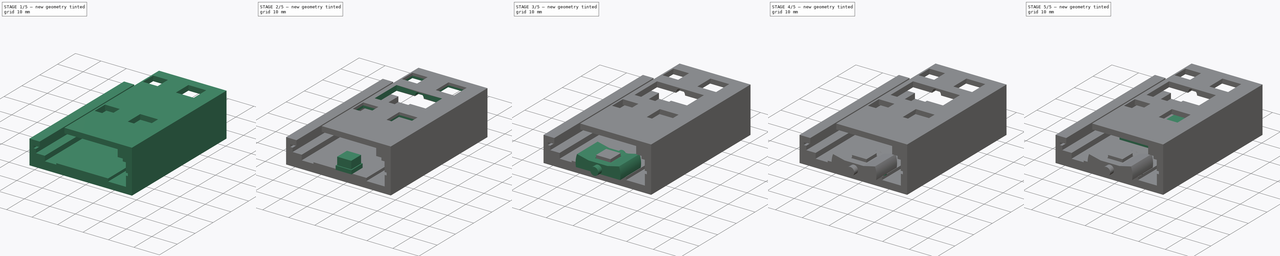
[diagram: build sequence overview — one tinted view per stage of 5, left to right]
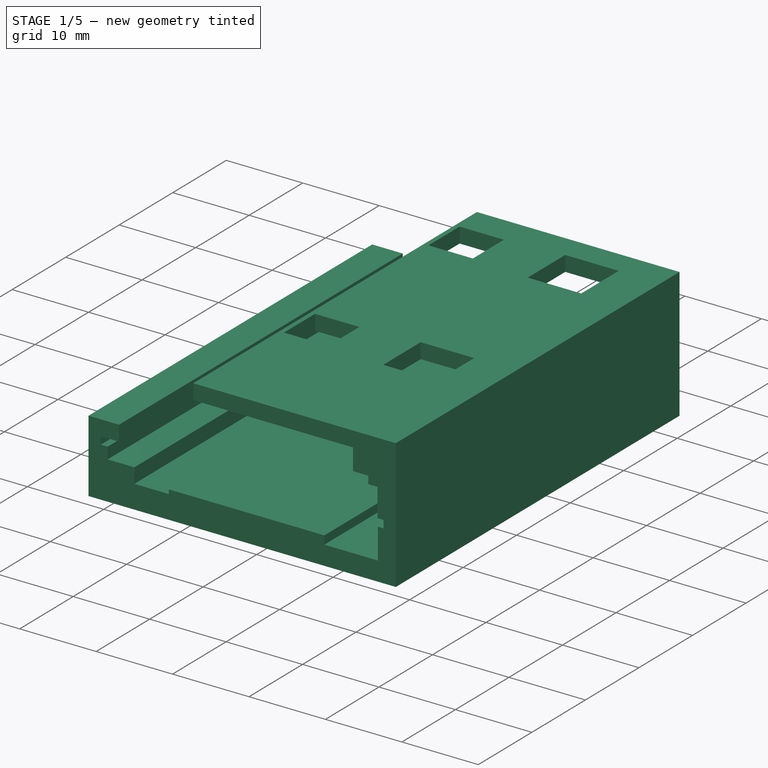
[diagram: stage 1 of 5 — iso view after this stage's code; geometry added in this stage tinted green]
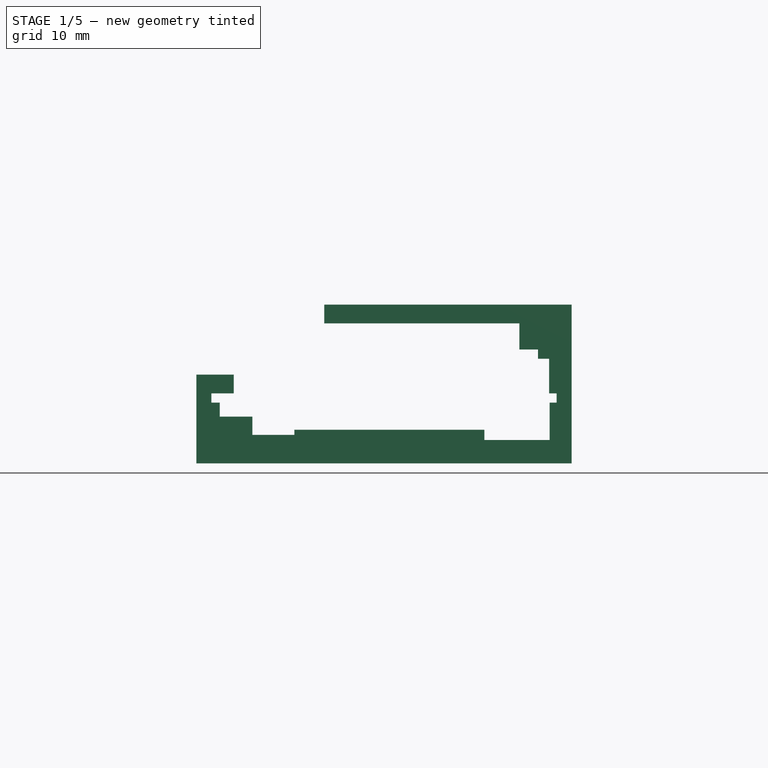
[diagram: stage 1 of 5 — front view after this stage's code; geometry added in this stage tinted green]
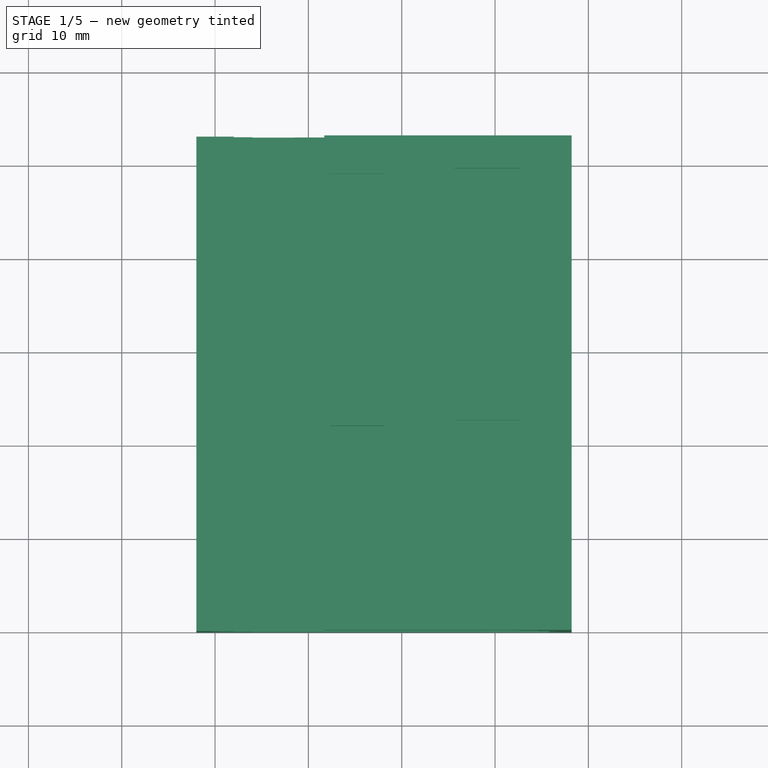
[diagram: stage 1 of 5 — top view after this stage's code; geometry added in this stage tinted green]
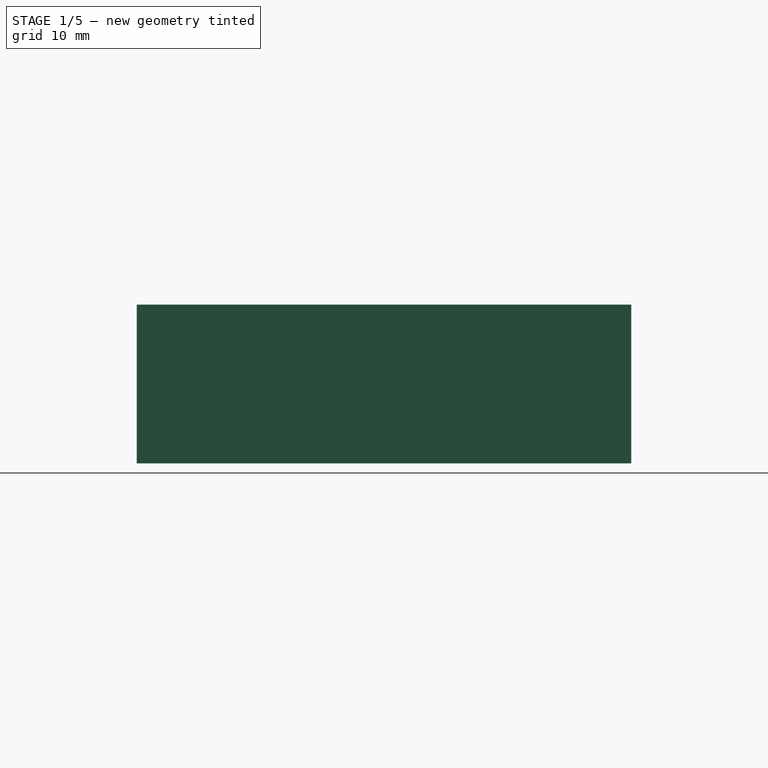
[diagram: stage 1 of 5 — right view after this stage's code; geometry added in this stage tinted green]
FCSTD DOCUMENT  (FreeCAD 1.0R39109 (Git))
Label: mini2
License: All rights reserved
LicenseURL: http://en.wikipedia.org/wiki/All_rights_reserved
objects: Part::Feature×92, Sketcher::SketchObject×22, PartDesign::Pad×15, PartDesign::Pocket×7, PartDesign::Body×6, App::Part×2
note: 208 computed .brp shape members not serialized (recipe doc carries the construction recipe); baked Part::Feature solids carry a one-line shape summary decoded from their .brp

FEATURE [Part::Feature] Part__Feature  label="R_0603_1608Metric"
  Placement = pos=(17.825,12.5,1.085) rot=(0,0,1;3.14159rad)
  shape: bbox 1.6 x 0.8 x 0.45 mm, 26 faces (baked)
FEATURE [Part::Feature] Part__Feature001  label="TL3315NF100Q"
  Placement = pos=(4,32.5,1.135) rot=(0,0,1;3.14159rad)
  shape: bbox 4.75 x 4.5 x 0.6 mm, 52 faces (baked)
FEATURE [Part::Feature] Part__Feature002  label="R_0603_1608Metric001"
  Placement = pos=(17.825,9.5,1.085) rot=(0,0,1;3.14159rad)
  shape: bbox 1.6 x 0.8 x 0.45 mm, 26 faces (baked)
FEATURE [Part::Feature] Part__Feature003  label="R_0603_1608Metric002"
  Placement = pos=(4,9.5,1.085) rot=(0,0,1;0rad)
  shape: bbox 1.6 x 0.8 x 0.45 mm, 26 faces (baked)
FEATURE [Part::Feature] Part__Feature004  label="TL3315NF100Q001"
  Placement = pos=(18,19,1.135) rot=(0,0,1;3.14159rad)
  shape: bbox 4.75 x 4.5 x 0.6 mm, 52 faces (baked)
FEATURE [Part::Feature] Part__Feature005  label="R_0603_1608Metric003"
  Placement = pos=(4,14,1.085) rot=(0,0,1;0rad)
  shape: bbox 1.6 x 0.8 x 0.45 mm, 26 faces (baked)
FEATURE [Part::Feature] Part__Feature006  label="R_0603_1608Metric004"
  Placement = pos=(17.825,14,1.085) rot=(0,0,1;3.14159rad)
  shape: bbox 1.6 x 0.8 x 0.45 mm, 26 faces (baked)
FEATURE [Part::Feature] Part__Feature007  label="R_0603_1608Metric005"
  Placement = pos=(4,12.5,1.085) rot=(0,0,1;0rad)
  shape: bbox 1.6 x 0.8 x 0.45 mm, 26 faces (baked)
FEATURE [Part::Feature] Part__Feature008  label="TL3315NF100Q002"
  Placement = pos=(11,32.5,1.135) rot=(0,0,1;3.14159rad)
  shape: bbox 4.75 x 4.5 x 0.6 mm, 52 faces (baked)
FEATURE [Part::Feature] Part__Feature009  label="TL3315NF100Q003"
  Placement = pos=(4,19,1.135) rot=(0,0,1;3.14159rad)
  shape: bbox 4.75 x 4.5 x 0.6 mm, 52 faces (baked)
FEATURE [Part::Feature] Part__Feature010  label="TL3315NF100Q004"
  Placement = pos=(18,46,1.135) rot=(0,0,1;3.14159rad)
  shape: bbox 4.75 x 4.5 x 0.6 mm, 52 faces (baked)
FEATURE [Part::Feature] Part__Feature011  label="DS1020-07-10VBT1A-R"
  Placement = pos=(11,6.7875,1.085) rot=(0,0,1;0rad)
  shape: bbox 17.2 x 6.9 x 2.5 mm, 65 faces (baked)
FEATURE [Part::Feature] Part__Feature012  label="TL3315NF100Q005"
  Placement = pos=(18,32.5,1.135) rot=(0,0,1;3.14159rad)
  shape: bbox 4.75 x 4.5 x 0.6 mm, 52 faces (baked)
FEATURE [Part::Feature] Part__Feature013  label="R_0603_1608Metric006"
  Placement = pos=(4,11,1.085) rot=(0,0,1;0rad)
  shape: bbox 1.6 x 0.8 x 0.45 mm, 26 faces (baked)
FEATURE [Part::Feature] Part__Feature014  label="TL3315NF100Q006"
  Placement = pos=(4,26,1.135) rot=(0,0,1;3.14159rad)
  shape: bbox 4.75 x 4.5 x 0.6 mm, 52 faces (baked)
FEATURE [Part::Feature] Part__Feature015  label="TL3315NF100Q007"
  Placement = pos=(4,46,1.135) rot=(0,0,1;3.14159rad)
  shape: bbox 4.75 x 4.5 x 0.6 mm, 52 faces (baked)
FEATURE [Part::Feature] Part__Feature016  label="R_0603_1608Metric007"
  Placement = pos=(17.825,11,1.085) rot=(0,0,1;3.14159rad)
  shape: bbox 1.6 x 0.8 x 0.45 mm, 26 faces (baked)
FEATURE [Part::Feature] Part__Feature017  label="airMouse-mouse_copper"
  shape: bbox 22 x 49 x 1.07 mm, 1784 faces, 31 solids (baked)
FEATURE [Part::Feature] Part__Feature018  label="airMouse-mouse_pad"
  shape: bbox 19.65 x 45.66 x 0.04 mm, 424 faces, 60 solids (baked)
FEATURE [Part::Feature] Part__Feature019  label="airMouse-mouse_via"
  shape: bbox 18.63 x 39.23 x 1.07 mm, 116 faces, 29 solids (baked)
FEATURE [Part::Feature] Part__Feature020  label="airMouse-mouse_silkscreen"
  shape: bbox 21.62 x 48.21 x 1.15 mm, 119 faces, 0 solids (baked)
FEATURE [Part::Feature] Part__Feature021  label="airMouse-mouse_soldermask"
  shape: bbox 23 x 50 x 1.1 mm, 2 faces, 0 solids (baked)
FEATURE [Part::Feature] Part__Feature022  label="airMouse-mouse_PCB"
  shape: bbox 23 x 50 x 1 mm, 6 faces (baked)
FEATURE [App::Part] airMouse_mouse_1  label="airMouse-mouse 1"
  Group = -> [Part__Feature,Part__Feature001,Part__Feature002,Part__Feature003,Part__Feature004,Part__Feature005,Part__Feature006,Part__Feature007,Part__Feature008,Part__Feature009,Part__Feature010,Part__Feature011,Part__Feature012,Part__Feature013,Part__Feature014,Part__Feature015,Part__Feature016,Part__Feature017,Part__Feature018,Part__Feature019,Part__Feature020,Part__Feature021,Part__Feature022]
  Origin = -> Origin
  Placement = pos=(11.2,0,4.7) rot=(0,0,1;0rad)
FEATURE [Part::Feature] Part__Feature023  label="DLG-0403-4R7"
  Placement = pos=(13.3125,31.95,1.085) rot=(0,0,-1;1.5708rad)
  shape: bbox 4.8 x 4.3 x 3.5 mm, 13 faces (baked)
FEATURE [Part::Feature] Part__Feature024  label="AAA"
  Placement = pos=(6,25.9,7.085) rot=(0,0,-1;1.5708rad)
  shape: bbox 10 x 44 x 10 mm, 5 faces (baked)
FEATURE [Part::Feature] Part__Feature025  label="BC-0401"
  Placement = pos=(6,47.2,1.085) rot=(0,0,-1;1.5708rad)
  shape: bbox 10.5 x 7.7 x 15.45 mm, 46 faces (baked)
FEATURE [Part::Feature] Part__Feature026  label="BC-0402"
  Placement = pos=(6,4.6,1.085) rot=(0,0,1;1.5708rad)
  shape: bbox 10.5 x 7.7 x 15.45 mm, 46 faces (baked)
FEATURE [Part::Feature] Part__Feature027  label="C_0603_1608Metric"
  Placement = pos=(14.5875,36.85,1.085) rot=(0,0,1;3.14159rad)
  shape: bbox 1.6 x 0.8 x 0.8 mm, 28 faces (baked)
FEATURE [Part::Feature] Part__Feature028  label="R_0603_1608Metric008"
  Placement = pos=(34.75,26.5,1.085) rot=(0,0,-1;1.5708rad)
  shape: bbox 0.8 x 1.6 x 0.45 mm, 26 faces (baked)
FEATURE [Part::Feature] Part__Feature029  label="C_0603_1608Metric001"
  Placement = pos=(14.5875,35.25,1.085) rot=(0,0,1;3.14159rad)
  shape: bbox 1.6 x 0.8 x 0.8 mm, 28 faces (baked)
FEATURE [Part::Feature] Part__Feature030  label="C_0603_1608Metric002"
  Placement = pos=(25.8,33.9,1.085) rot=(0,0,1;3.14159rad)
  shape: bbox 1.6 x 0.8 x 0.8 mm, 28 faces (baked)
FEATURE [Part::Feature] Part__Feature031  label="DS1020-07-16VBT1A-R"
  Placement = pos=(24.1,8.6,1.085) rot=(0,0,1;0rad)
  shape: bbox 23.2 x 6.9 x 2.5 mm, 95 faces (baked)
FEATURE [Part::Feature] Part__Feature032  label="R_0603_1608Metric009"
  Placement = pos=(16.5,12,1.085) rot=(0,0,-1;1.5708rad)
  shape: bbox 0.8 x 1.6 x 0.45 mm, 26 faces (baked)
FEATURE [Part::Feature] Part__Feature033  label="LED_0603_1608Metric"
  Placement = pos=(34.4,40.6,1.085) rot=(0,0,1;0rad)
  shape: bbox 1.6 x 0.8 x 1.1 mm, 50 faces (baked)
FEATURE [Part::Feature] Part__Feature034  label="SOT-23"
  Placement = pos=(18.1125,33.2875,1.085) rot=(0,0,1;1.5708rad)
  shape: bbox 3 x 2.5 x 1.2 mm, 76 faces (baked)
FEATURE [Part::Feature] Part__Feature035  label="R_0603_1608Metric010"
  Placement = pos=(33.15,26.5,1.085) rot=(0,0,-1;1.5708rad)
  shape: bbox 0.8 x 1.6 x 0.45 mm, 26 faces (baked)
FEATURE [Part::Feature] Part__Feature036  label="C_0805_2012Metric"
  Placement = pos=(13.5125,22.15,1.085) rot=(0,0,1;3.14159rad)
  shape: bbox 2 x 1.25 x 1.25 mm, 28 faces (baked)
FEATURE [Part::Feature] Part__Feature037  label="R_0603_1608Metric011"
  Placement = pos=(31.55,26.5,1.085) rot=(0,0,-1;1.5708rad)
  shape: bbox 0.8 x 1.6 x 0.45 mm, 26 faces (baked)
FEATURE [Part::Feature] Part__Feature038  label="D_SOD-123"
  Placement = pos=(18.7125,25.4,1.085) rot=(0,0,1;1.5708rad)
  shape: bbox 1.6 x 3.8 x 1.25 mm, 67 faces (baked)
FEATURE [Part::Feature] Part__Feature039  label="R_0603_1608Metric012"
  Placement = pos=(25.8,35.4,1.085) rot=(0,0,1;3.14159rad)
  shape: bbox 1.6 x 0.8 x 0.45 mm, 26 faces (baked)
FEATURE [Part::Feature] Part__Feature040  label="SOT-23-6"
  Placement = pos=(13.75,25.2,1.085) rot=(0,0,1;0rad)
  shape: bbox 2.8 x 2.9 x 1.55 mm, 124 faces (baked)
FEATURE [Part::Feature] Part__Feature041  label="R_0603_1608Metric013"
  Placement = pos=(18,12,1.085) rot=(0,0,-1;1.5708rad)
  shape: bbox 0.8 x 1.6 x 0.45 mm, 26 faces (baked)
FEATURE [Part::Feature] Part__Feature042  label="R_0603_1608Metric014"
  Placement = pos=(15,12,1.085) rot=(0,0,-1;1.5708rad)
  shape: bbox 0.8 x 1.6 x 0.45 mm, 26 faces (baked)
FEATURE [Part::Feature] Part__Feature043  label="R_0603_1608Metric015"
  Placement = pos=(10.425,50.8,1.085) rot=(0,0,1;0rad)
  shape: bbox 1.6 x 0.8 x 0.45 mm, 26 faces (baked)
FEATURE [Part::Feature] Part__Feature044  label="R_0603_1608Metric016"
  Placement = pos=(16.7125,22.75,1.085) rot=(0,0,1;1.5708rad)
  shape: bbox 0.8 x 1.6 x 0.45 mm, 26 faces (baked)
FEATURE [Part::Feature] Part__Feature045  label="R_0603_1608Metric017"
  Placement = pos=(16.7125,25.75,1.085) rot=(0,0,1;1.5708rad)
  shape: bbox 0.8 x 1.6 x 0.45 mm, 26 faces (baked)
FEATURE [Part::Feature] Part__Feature046  label="PinHeader_1x02_P2.54mm_Vertical"
  Placement = pos=(34.4,49.4,1.085) rot=(0,0,1;0rad)
  shape: bbox 2.54 x 5.08 x 11.54 mm, 52 faces (baked)
FEATURE [Part::Feature] Part__Feature047  label="R_0603_1608Metric018"
  Placement = pos=(19.5,12,1.085) rot=(0,0,-1;1.5708rad)
  shape: bbox 0.8 x 1.6 x 0.45 mm, 26 faces (baked)
FEATURE [Part::Feature] Part__Feature048  label="C_0805_2012Metric001"
  Placement = pos=(13.95,28.2,1.085) rot=(0,0,1;3.14159rad)
  shape: bbox 2 x 1.25 x 1.25 mm, 28 faces (baked)
FEATURE [Part::Feature] Part__Feature049  label="LED_0603_1608Metric001"
  Placement = pos=(34.4,42.25,1.085) rot=(0,0,1;0rad)
  shape: bbox 1.6 x 0.8 x 1.1 mm, 50 faces (baked)
FEATURE [Part::Feature] Part__Feature050  label="ZH-S5B-SM4A"
  Placement = pos=(31.05,17.85,1.085) rot=(0,0,1;1.5708rad)
  shape: bbox 6.5 x 10.5 x 3.7 mm, 46 faces (baked)
FEATURE [Part::Feature] Part__Feature051  label="R_0603_1608Metric019"
  Placement = pos=(13.5,12,1.085) rot=(0,0,-1;1.5708rad)
  shape: bbox 0.8 x 1.6 x 0.45 mm, 26 faces (baked)
FEATURE [Part::Feature] Part__Feature052  label="LED_0603_1608Metric002"
  Placement = pos=(34.4,43.9,1.085) rot=(0,0,1;0rad)
  shape: bbox 1.6 x 0.8 x 1.1 mm, 50 faces (baked)
FEATURE [Part::Feature] Part__Feature053  label="ESP32-C3-WROOM-02"
  Placement = pos=(22.35,45.2,1.085) rot=(0,0,1;0rad)
  shape: bbox 18 x 20 x 3.235 mm, 326 faces, 30 solids (baked)
FEATURE [Part::Feature] Part__Feature054  label="C_0603_1608Metric003"
  Placement = pos=(13.7125,20.05,1.085) rot=(0,0,1;3.14159rad)
  shape: bbox 1.6 x 0.8 x 0.8 mm, 28 faces (baked)
FEATURE [Part::Feature] Part__Feature055  label="TL3315NF100Q008"
  Placement = pos=(21.8,49,-0.135) rot=(1,0,0;3.14159rad)
  shape: bbox 4.75 x 4.5 x 0.6 mm, 52 faces (baked)
FEATURE [Part::Feature] Part__Feature056  label="R_0603_1608Metric020"
  Placement = pos=(27.6,49,-0.085) rot=(0.707107,-0.707107,0;3.14159rad)
  shape: bbox 0.8 x 1.6 x 0.45 mm, 26 faces (baked)
FEATURE [Part::Feature] Part__Feature057  label="R_0603_1608Metric021"
  Placement = pos=(9.4,12.825,-0.085) rot=(0.707107,0.707107,0;3.14159rad)
  shape: bbox 0.8 x 1.6 x 0.45 mm, 26 faces (baked)
FEATURE [Part::Feature] Part__Feature058  label="C_0603_1608Metric004"
  Placement = pos=(2.45511,25,-0.085) rot=(0,1,0;3.14159rad)
  shape: bbox 1.6 x 0.8 x 0.8 mm, 28 faces (baked)
FEATURE [Part::Feature] Part__Feature059  label="R_0603_1608Metric022"
  Placement = pos=(6.05511,27.2,-0.085) rot=(1,0,0;3.14159rad)
  shape: bbox 1.6 x 0.8 x 0.45 mm, 26 faces (baked)
FEATURE [Part::Feature] Part__Feature060  label="R_0603_1608Metric023"
  Placement = pos=(30.4,46.8,-0.085) rot=(0,1,0;3.14159rad)
  shape: bbox 1.6 x 0.8 x 0.45 mm, 26 faces (baked)
FEATURE [Part::Feature] Part__Feature061  label="R_0603_1608Metric024"
  Placement = pos=(23.8,41.8,-0.085) rot=(-0.382683,0.92388,0;3.14159rad)
  shape: bbox 1.697 x 1.697 x 0.45 mm, 26 faces (baked)
FEATURE [Part::Feature] Part__Feature062  label="R_0603_1608Metric025"
  Placement = pos=(15.4,45.425,-0.085) rot=(0.707107,-0.707107,0;3.14159rad)
  shape: bbox 0.8 x 1.6 x 0.45 mm, 26 faces (baked)
FEATURE [Part::Feature] Part__Feature063  label="C_0603_1608Metric005"
  Placement = pos=(16.8533,39.2475,-0.085) rot=(0.382683,0.92388,0;3.14159rad)
  shape: bbox 1.697 x 1.697 x 0.8 mm, 28 faces (baked)
FEATURE [Part::Feature] Part__Feature064  label="R_0603_1608Metric026"
  Placement = pos=(5.45511,32.2,-0.085) rot=(0,1,0;3.14159rad)
  shape: bbox 1.6 x 0.8 x 0.45 mm, 26 faces (baked)
FEATURE [Part::Feature] Part__Feature065  label="R_0603_1608Metric027"
  Placement = pos=(5.45511,33.8,-0.085) rot=(0,1,0;3.14159rad)
  shape: bbox 1.6 x 0.8 x 0.45 mm, 26 faces (baked)
FEATURE [Part::Feature] Part__Feature066  label="DS1020-07-10VBT1A-R001"
  Placement = pos=(17.8,8.6875,-0.085) rot=(0,1,0;3.14159rad)
  shape: bbox 17.2 x 6.9 x 2.5 mm, 65 faces (baked)
FEATURE [Part::Feature] Part__Feature067  label="C_0805_2012Metric002"
  Placement = pos=(19.4,42.6,-0.085) rot=(0.92388,0.382683,0;3.14159rad)
  shape: bbox 2.298 x 2.298 x 1.25 mm, 28 faces (baked)
FEATURE [Part::Feature] Part__Feature068  label="R_0603_1608Metric028"
  Placement = pos=(6.05511,30.4,-0.085) rot=(1,0,0;3.14159rad)
  shape: bbox 1.6 x 0.8 x 0.45 mm, 26 faces (baked)
FEATURE [Part::Feature] Part__Feature069  label="R_0603_1608Metric029"
  Placement = pos=(6.05511,28.8,-0.085) rot=(1,0,0;3.14159rad)
  shape: bbox 1.6 x 0.8 x 0.45 mm, 26 faces (baked)
FEATURE [Part::Feature] Part__Feature070  label="R_0603_1608Metric030"
  Placement = pos=(31.5,27,-0.085) rot=(-0.382683,0.92388,0;3.14159rad)
  shape: bbox 1.697 x 1.697 x 0.45 mm, 26 faces (baked)
FEATURE [Part::Feature] Part__Feature071  label="R_0603_1608Metric031"
  Placement = pos=(7.5,50,-0.085) rot=(0,1,0;3.14159rad)
  shape: bbox 1.6 x 0.8 x 0.45 mm, 26 faces (baked)
FEATURE [Part::Feature] Part__Feature072  label="DS1020-07-4VBT1A-R"
  Placement = pos=(29.0625,7.65,-0.085) rot=(0.707107,-0.707107,0;3.14159rad)
  shape: bbox 6.9 x 11.2 x 2.5 mm, 35 faces (baked)
FEATURE [Part::Feature] Part__Feature073  label="C_0603_1608Metric006"
  Placement = pos=(12.2,47.175,-0.085) rot=(0.707107,-0.707107,0;3.14159rad)
  shape: bbox 0.8 x 1.6 x 0.8 mm, 28 faces (baked)
FEATURE [Part::Feature] Part__Feature074  label="C_0805_2012Metric003"
  Placement = pos=(10.4,47,-0.085) rot=(0.707107,-0.707107,0;3.14159rad)
  shape: bbox 1.25 x 2 x 1.25 mm, 28 faces (baked)
FEATURE [Part::Feature] Part__Feature075  label="C_0603_1608Metric007"
  Placement = pos=(20.4,41.1,-0.085) rot=(0.92388,0.382683,0;3.14159rad)
  shape: bbox 1.697 x 1.697 x 0.8 mm, 28 faces (baked)
FEATURE [Part::Feature] Part__Feature076  label="C_0603_1608Metric008"
  Placement = pos=(18.2,44,-0.085) rot=(0.92388,0.382683,0;3.14159rad)
  shape: bbox 1.697 x 1.697 x 0.8 mm, 28 faces (baked)
FEATURE [Part::Feature] Part__Feature077  label="LQFP-64_10x10mm_P0.5mm"
  Placement = pos=(27.4,34.6,-0.085) rot=(0.92388,-0.382683,0;3.14159rad)
  shape: bbox 13.94 x 13.94 x 1.5 mm, 1004 faces (baked)
FEATURE [Part::Feature] Part__Feature078  label="C_0603_1608Metric009"
  Placement = pos=(18,40.2,-0.085) rot=(0.92388,-0.382683,0;3.14159rad)
  shape: bbox 1.697 x 1.697 x 0.8 mm, 28 faces (baked)
FEATURE [Part::Feature] Part__Feature079  label="R_0603_1608Metric032"
  Placement = pos=(2.25511,32.7,-0.085) rot=(1,0,0;3.14159rad)
  shape: bbox 1.6 x 0.8 x 0.45 mm, 26 faces (baked)
FEATURE [Part::Feature] Part__Feature080  label="R_0603_1608Metric033"
  Placement = pos=(17,50.225,-0.085) rot=(0.707107,-0.707107,0;3.14159rad)
  shape: bbox 0.8 x 1.6 x 0.45 mm, 26 faces (baked)
FEATURE [Part::Feature] Part__Feature081  label="C_0603_1608Metric010"
  Placement = pos=(2.45511,26.6,-0.085) rot=(0,1,0;3.14159rad)
  shape: bbox 1.6 x 0.8 x 0.8 mm, 28 faces (baked)
FEATURE [Part::Feature] Part__Feature082  label="LGA-14_3x2.5mm_P0.5mm_LayoutBorder3x4y"
  Placement = pos=(2.25511,29,-0.085) rot=(0,1,0;3.14159rad)
  shape: bbox 3 x 2.5 x 0.78 mm, 78 faces (baked)
FEATURE [Part::Feature] Part__Feature083  label="C_0603_1608Metric011"
  Placement = pos=(10.175,15.4,-0.085) rot=(1,0,0;3.14159rad)
  shape: bbox 1.6 x 0.8 x 0.8 mm, 28 faces (baked)
FEATURE [Part::Feature] Part__Feature084  label="C_0603_1608Metric012"
  Placement = pos=(17,47.2,-0.085) rot=(0.707107,-0.707107,0;3.14159rad)
  shape: bbox 0.8 x 1.6 x 0.8 mm, 28 faces (baked)
FEATURE [Part::Feature] Part__Feature085  label="ZH-S3B-SM4A"
  Placement = pos=(31.05,17.85,-0.085) rot=(0.707107,-0.707107,0;3.14159rad)
  shape: bbox 6.5 x 7.5 x 3.7 mm, 36 faces (baked)
FEATURE [Part::Feature] Part__Feature086  label="airMouse-mcu_copper"
  shape: bbox 35.2 x 52 x 1.07 mm, 7130 faces, 178 solids (baked)
FEATURE [Part::Feature] Part__Feature087  label="airMouse-mcu_pad"
  shape: bbox 34.84 x 49.25 x 1.08 mm, 2542 faces, 312 solids (baked)
FEATURE [Part::Feature] Part__Feature088  label="airMouse-mcu_via"
  shape: bbox 33.98 x 49.85 x 1.07 mm, 796 faces, 199 solids (baked)
FEATURE [Part::Feature] Part__Feature089  label="airMouse-mcu_silkscreen"
  shape: bbox 35.33 x 50.85 x 1.15 mm, 337 faces, 0 solids (baked)
FEATURE [Part::Feature] Part__Feature090  label="airMouse-mcu_soldermask"
  shape: bbox 36.2 x 53 x 1.1 mm, 2 faces, 0 solids (baked)
FEATURE [Part::Feature] Part__Feature091  label="airMouse-mcu_PCB"
  shape: bbox 36.2 x 53 x 1 mm, 24 faces (baked)
FEATURE [App::Part] airMouse_mcuv1_0_1  label="airMouse-mcuv1.0 1"
  Group = -> [Part__Feature023,Part__Feature024,Part__Feature025,Part__Feature026,Part__Feature027,Part__Feature028,Part__Feature029,Part__Feature030,Part__Feature031,Part__Feature032,Part__Feature033,Part__Feature034,Part__Feature035,Part__Feature036,Part__Feature037,Part__Feature038,Part__Feature039,Part__Feature040,Part__Feature041,Part__Feature042,Part__Feature043,Part__Feature044,Part__Feature045,+46 more]
  Origin = -> Origin001
FEATURE [Sketcher::SketchObject] Sketch
  ArcFitTolerance = 1e-06
  AttachmentSupport = -> [XZ_Plane002]
  FullyConstrained = true
  MakeInternals = false
  MapMode = 5
  Placement = pos=(0,0,0) rot=(1,0,0;1.5708rad)
  sketch-geometry (4):
    g0: LineSegment StartX=-2 StartY=8.5 StartZ=0 EndX=-2 EndY=-6.5 EndZ=0
    g1: LineSegment StartX=-2 StartY=-6.5 StartZ=0 EndX=38.2 EndY=-6.5 EndZ=0
    g2: LineSegment StartX=38.2 StartY=-6.5 StartZ=0 EndX=38.2 EndY=8.5 EndZ=0
    g3: LineSegment StartX=38.2 StartY=8.5 StartZ=0 EndX=-2 EndY=8.5 EndZ=0
  constraints (12):
    c: Coincident(g0,g1)
    c: Coincident(g1,g2)
    c: Coincident(g2,g3)
    c: Coincident(g3,g0)
    c: Vertical(g0)
    c: Vertical(g2)
    c: Horizontal(g1)
    c: Horizontal(g3)
    c: DistanceY(g0,g0) = 15
    c: DistanceY(g0,g-1) = 6.5
    c: DistanceX(g0,g-1) = 2
    c: DistanceX(g1,g1) = 40.2
FEATURE [PartDesign::Pad] Pad
  Direction = (0,-1,2e-16)
  Length = 53
  Length2 = 10
  Placement = pos=(0,0,0) rot=(1,0,0;1.5708rad)
  Profile = -> Sketch
  ReferenceAxis = -> Sketch [N_Axis]
  Reversed = true
  Suppressed = false
  Type = 0
FEATURE [Sketcher::SketchObject] Sketch001
  ArcFitTolerance = 1e-06
  AttachmentSupport = -> [XZ_Plane002]
  FullyConstrained = true
  MakeInternals = false
  MapMode = 5
  Placement = pos=(0,0,0) rot=(1,0,0;1.5708rad)
  sketch-geometry (24):
    g0: LineSegment StartX=-2 StartY=11 StartZ=0 EndX=-2 EndY=3 EndZ=0
    g1: LineSegment StartX=-2 StartY=3 StartZ=0 EndX=2 EndY=3 EndZ=0
    g2: LineSegment StartX=2 StartY=3 StartZ=0 EndX=2 EndY=1 EndZ=0
    g3: LineSegment StartX=2 StartY=1 StartZ=0 EndX=-0.4 EndY=1 EndZ=0
    g4: LineSegment StartX=0.5 StartY=0 StartZ=0 EndX=0.5 EndY=-1.5 EndZ=0
    g5: LineSegment StartX=0.5 StartY=-1.5 StartZ=0 EndX=4 EndY=-1.5 EndZ=0
    g6: LineSegment StartX=4 StartY=-1.5 StartZ=0 EndX=4 EndY=-3.45 EndZ=0
    g7: LineSegment StartX=4 StartY=-3.45 StartZ=0 EndX=8.5 EndY=-3.45 EndZ=0
    g8: LineSegment StartX=8.5 StartY=-3.45 StartZ=0 EndX=8.5 EndY=-2.9 EndZ=0
    g9: LineSegment StartX=8.5 StartY=-2.9 StartZ=0 EndX=28.85 EndY=-2.9 EndZ=0
    g10: LineSegment StartX=28.85 StartY=-2.9 StartZ=0 EndX=28.85 EndY=-4 EndZ=0
    g11: LineSegment StartX=28.85 StartY=-4 StartZ=0 EndX=35.85 EndY=-4 EndZ=0
    g12: LineSegment StartX=35.85 StartY=-4 StartZ=0 EndX=35.85 EndY=0 EndZ=0
    g13: LineSegment StartX=35.85 StartY=0 StartZ=0 EndX=36.6 EndY=0 EndZ=0
    g14: LineSegment StartX=36.6 StartY=0 StartZ=0 EndX=36.6 EndY=1 EndZ=0
    g15: LineSegment StartX=36.6 StartY=1 StartZ=0 EndX=35.8 EndY=1 EndZ=0
    g16: LineSegment StartX=35.8 StartY=1 StartZ=0 EndX=35.8 EndY=4.7 EndZ=0
    g17: LineSegment StartX=35.8 StartY=4.7 StartZ=0 EndX=34.6 EndY=4.7 EndZ=0
    g18: LineSegment StartX=34.6 StartY=4.7 StartZ=0 EndX=34.6 EndY=5.7 EndZ=0
    g19: LineSegment StartX=-0.4 StartY=0 StartZ=0 EndX=0.5 EndY=0 EndZ=0
    g20: LineSegment StartX=-0.4 StartY=1 StartZ=0 EndX=-0.4 EndY=0 EndZ=0
    g21: LineSegment StartX=34.6 StartY=5.7 StartZ=0 EndX=32.6 EndY=5.7 EndZ=0
    g22: LineSegment StartX=32.6 StartY=5.7 StartZ=0 EndX=32.6 EndY=11 EndZ=0
    g23: LineSegment StartX=-2 StartY=11 StartZ=0 EndX=32.6 EndY=11 EndZ=0
  constraints (72):
    c: Vertical(g0)
    c: Coincident(g1,g0)
    c: Coincident(g2,g1)
    c: Vertical(g2)
    c: Coincident(g3,g2)
    c: Horizontal(g3)
    c: Horizontal(g1)
    c: DistanceX(g1,g1) = 4
    c: DistanceY(g2,g2) = 2
    c: DistanceY(g0,g0) = 8
    c: Vertical(g4)
    c: Coincident(g5,g4)
    c: Horizontal(g5)
    c: Coincident(g6,g5)
    c: Vertical(g6)
    c: Coincident(g7,g6)
    c: Horizontal(g7)
    c: Coincident(g8,g7)
    c: Vertical(g8)
    c: Coincident(g9,g8)
    c: Horizontal(g9)
    c: Coincident(g10,g9)
    c: Vertical(g10)
    c: Coincident(g11,g10)
    c: Horizontal(g11)
    c: Coincident(g12,g11)
    c: PointOnObject(g12,g-1)
    c: Vertical(g12)
    c: Coincident(g13,g12)
    c: PointOnObject(g13,g-1)
    c: DistanceX(g-1,g13) = 36.6
    c: Coincident(g14,g13)
    c: Vertical(g14)
    c: Coincident(g15,g14)
    c: Horizontal(g15)
    c: DistanceX(g15,g15) = 0.8
    c: Coincident(g16,g15)
    c: Vertical(g16)
    c: Coincident(g17,g16)
    c: Horizontal(g17)
    c: Coincident(g18,g17)
    c: Vertical(g18)
    c: DistanceX(g5,g5) = 3.5
    c: DistanceX(g-1,g4) = 0.5
    c: DistanceY(g4,g4) = 1.5
    c: DistanceY(g6,g6) = 1.95
    c: DistanceX(g7,g7) = 4.5
    c: DistanceX(g11,g11) = 7
    c: DistanceX(g13,g13) = 0.75
    c: DistanceY(g12,g12) = 4
    c: DistanceY(g10,g10) = 1.1
    c: DistanceX(g0,g-1) = 2
    c: Coincident(g19,g4)
    c: Horizontal(g19)
    c: DistanceY(g-1,g3) = 1
    c: Coincident(g20,g3)
    c: PointOnObject(g20,g-1)
    c: Vertical(g20)
    c: Coincident(g19,g20)
    c: DistanceX(g3,g-1) = 0.4
    c: DistanceY(g14,g14) = 1
    c: DistanceX(g-1,g17) = 34.6
    c: DistanceY(g-1,g16) = 4.7
    c: DistanceY(g18,g18) = 1
    c: Coincident(g21,g18)
    c: Horizontal(g21)
    c: Coincident(g22,g21)
    c: Vertical(g22)
    c: Coincident(g23,g0)
    c: Coincident(g23,g22)
    c: Horizontal(g23)
    c: DistanceX(g21,g21) = 2
FEATURE [PartDesign::Pocket] Pocket  label="cut"
  BaseFeature = -> Pad
  Direction = (0,1,-2e-16)
  Length = 53
  Length2 = 5
  Placement = pos=(0,0,0) rot=(1,0,0;1.5708rad)
  Profile = -> Sketch001
  ReferenceAxis = -> Sketch001 [N_Axis]
  Suppressed = false
  Type = 0
FEATURE [PartDesign::Body] Body006  label="button middle"
  AllowCompound = false
  Group = -> [Sketch018,Pad012,Sketch020,Pad013,Sketch021,Pad014]
  Origin = -> Origin008
  Placement = pos=(0,32.5,8.5) rot=(0,0,1;0rad)
  Tip = -> Pad014
FEATURE [Sketcher::SketchObject] Sketch022
  ArcFitTolerance = 1e-06
  AttachmentSupport = -> [XZ_Plane002]
  FullyConstrained = true
  MakeInternals = false
  MapMode = 5
  Placement = pos=(0,0,0) rot=(1,0,0;1.5708rad)
  sketch-geometry (4):
    g0: LineSegment StartX=11.7 StartY=8.5 StartZ=0 EndX=38.2 EndY=8.5 EndZ=0
    g1: LineSegment StartX=38.2 StartY=8.5 StartZ=0 EndX=38.2 EndY=10.5 EndZ=0
    g2: LineSegment StartX=38.2 StartY=10.5 StartZ=0 EndX=11.7 EndY=10.5 EndZ=0
    g3: LineSegment StartX=11.7 StartY=10.5 StartZ=0 EndX=11.7 EndY=8.5 EndZ=0
  constraints (12):
    c: Coincident(g0,g1)
    c: Coincident(g1,g2)
    c: Coincident(g2,g3)
    c: Coincident(g3,g0)
    c: Horizontal(g0)
    c: Horizontal(g2)
    c: Vertical(g1)
    c: Vertical(g3)
    c: DistanceX(g-1,g0) = 38.2
    c: DistanceY(g1,g1) = 2
    c: DistanceX(g2,g2) = 26.5
    c: DistanceY(g-1,g0) = 8.5
FEATURE [PartDesign::Pad] Pad015  label="lid001"
  BaseFeature = -> Pocket
  Direction = (0,-1,2e-16)
  Length = 53
  Length2 = 10
  Placement = pos=(0,0,0) rot=(1,0,0;1.5708rad)
  Profile = -> Sketch022
  ReferenceAxis = -> Sketch022 [N_Axis]
  Reversed = true
  Suppressed = false
  Type = 0
FEATURE [Sketcher::SketchObject] Sketch023
  ArcFitTolerance = 1e-06
  AttachmentOffset = pos=(0,0,8.5) rot=(0,0,1;0rad)
  AttachmentSupport = -> [XY_Plane002]
  FullyConstrained = true
  MakeInternals = false
  MapMode = 5
  Placement = pos=(0,0,8.5) rot=(0,0,1;0rad)
  sketch-geometry (24):
    g0: LineSegment [constr] StartX=0 StartY=0 StartZ=0 EndX=11.2 EndY=0 EndZ=0
    g1: LineSegment StartX=12.3 StartY=21.9 StartZ=0 EndX=12.3 EndY=16.1 EndZ=0
    g2: LineSegment StartX=12.3 StartY=16.1 StartZ=0 EndX=18.1 EndY=16.1 EndZ=0
    g3: LineSegment StartX=18.1 StartY=16.1 StartZ=0 EndX=18.1 EndY=21.9 EndZ=0
    g4: LineSegment StartX=18.1 StartY=21.9 StartZ=0 EndX=12.3 EndY=21.9 EndZ=0
    g5: LineSegment StartX=25.7 StartY=22.5 StartZ=0 EndX=25.7 EndY=15.5 EndZ=0
    g6: LineSegment StartX=25.7 StartY=15.5 StartZ=0 EndX=32.7 EndY=15.5 EndZ=0
    g7: LineSegment StartX=32.7 StartY=15.5 StartZ=0 EndX=32.7 EndY=22.5 EndZ=0
    g8: LineSegment StartX=32.7 StartY=22.5 StartZ=0 EndX=25.7 EndY=22.5 EndZ=0
    g9: LineSegment StartX=12.3 StartY=48.9 StartZ=0 EndX=12.3 EndY=43.1 EndZ=0
    g10: LineSegment StartX=12.3 StartY=43.1 StartZ=0 EndX=18.1 EndY=43.1 EndZ=0
    g11: LineSegment StartX=18.1 StartY=43.1 StartZ=0 EndX=18.1 EndY=48.9 EndZ=0
    g12: LineSegment StartX=18.1 StartY=48.9 StartZ=0 EndX=12.3 EndY=48.9 EndZ=0
    g13: LineSegment StartX=25.7 StartY=49.5 StartZ=0 EndX=25.7 EndY=42.5 EndZ=0
    g14: LineSegment StartX=25.7 StartY=42.5 StartZ=0 EndX=32.7 EndY=42.5 EndZ=0
    g15: LineSegment StartX=32.7 StartY=42.5 StartZ=0 EndX=32.7 EndY=49.5 EndZ=0
    g16: LineSegment StartX=32.7 StartY=49.5 StartZ=0 EndX=25.7 EndY=49.5 EndZ=0
    g17: GeomPoint X=12.3 Y=19 Z=0
    g18: GeomPoint X=15.2 Y=16.1 Z=0
    g19: GeomPoint X=29.2 Y=15.5 Z=0
    g20: GeomPoint X=12.3 Y=46 Z=0
    g21: GeomPoint X=25.7 Y=46 Z=0
    g22: GeomPoint X=29.2 Y=42.5 Z=0
    g23: GeomPoint X=25.7 Y=19 Z=0
  constraints (58):
    c: Coincident(g0,g-1)
    c: PointOnObject(g0,g-1)
    c: DistanceX(g0,g0) = 11.2
    c: Coincident(g1,g2)
    c: Coincident(g2,g3)
    c: Coincident(g3,g4)
    c: Coincident(g4,g1)
    c: Vertical(g1)
    c: Vertical(g3)
    c: Horizontal(g2)
    c: Horizontal(g4)
    c: Coincident(g5,g6)
    c: Coincident(g6,g7)
    c: Coincident(g7,g8)
    c: Coincident(g8,g5)
    c: Vertical(g5)
    c: Vertical(g7)
    c: Horizontal(g6)
    c: Horizontal(g8)
    c: Coincident(g9,g10)
    c: Coincident(g10,g11)
    c: Coincident(g11,g12)
    c: Coincident(g12,g9)
    c: Vertical(g9)
    c: Vertical(g11)
    c: Horizontal(g10)
    c: Horizontal(g12)
    c: Coincident(g13,g14)
    c: Coincident(g14,g15)
    c: Coincident(g15,g16)
    c: Coincident(g16,g13)
    c: Vertical(g13)
    c: Vertical(g15)
    c: Horizontal(g14)
    c: Horizontal(g16)
    c: Equal(g12,g9)
    c: Equal(g4,g1)
    c: Equal(g8,g5)
    c: Equal(g12,g4)
    c: DistanceY(g9,g9) = 5.8
    c: Vertical(g10,g3)
    c: Symmetric(g1,g1,g17)
    c: Symmetric(g2,g2,g18)
    c: Symmetric(g6,g6,g19)
    c: Symmetric(g9,g9,g20)
    c: DistanceY(g0,g17) = 19
    c: DistanceY(g0,g20) = 46
    c: DistanceX(g0,g18) = 4
    c: DistanceX(g0,g19) = 18
    c: Symmetric(g13,g13,g21)
    c: Horizontal(g21,g20)
    c: Equal(g16,g13)
    c: DistanceX(g16,g16) = 7
    c: Symmetric(g14,g14,g22)
    c: Vertical(g19,g22)
    c: Equal(g8,g16)
    c: Symmetric(g5,g5,g23)
    c: Horizontal(g23,g17)
FEATURE [PartDesign::Pocket] Pocket007  label="button pockets001"
  BaseFeature = -> Pad015
  Direction = (0,0,-1)
  Length = 5
  Length2 = 5
  Placement = pos=(0,0,0) rot=(1,0,0;1.5708rad)
  Profile = -> Sketch023
  ReferenceAxis = -> Sketch023 [N_Axis]
  Reversed = true
  Suppressed = false
  Type = 1
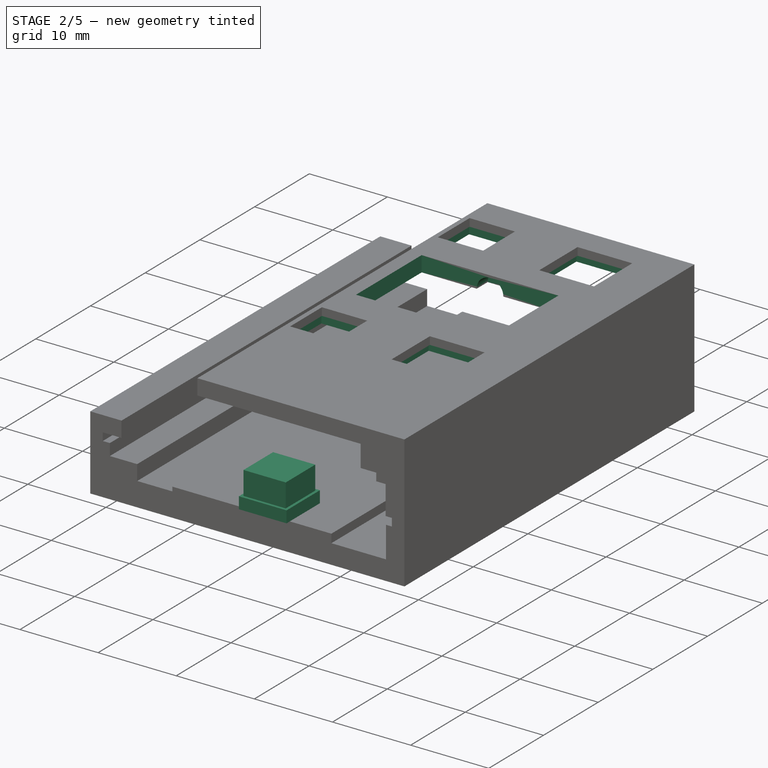
[diagram: stage 2 of 5 — iso view after this stage's code; geometry added in this stage tinted green]
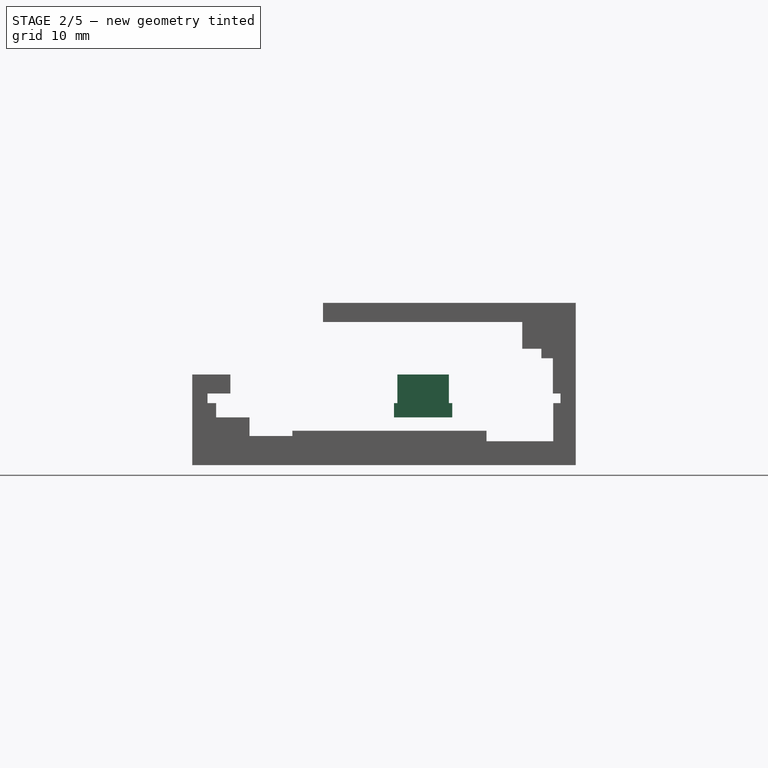
[diagram: stage 2 of 5 — front view after this stage's code; geometry added in this stage tinted green]
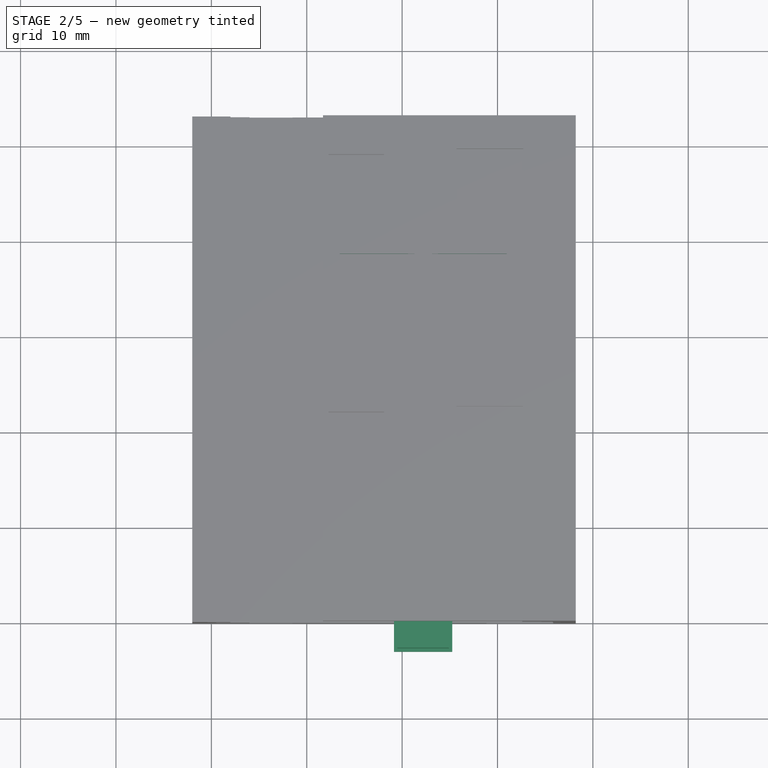
[diagram: stage 2 of 5 — top view after this stage's code; geometry added in this stage tinted green]
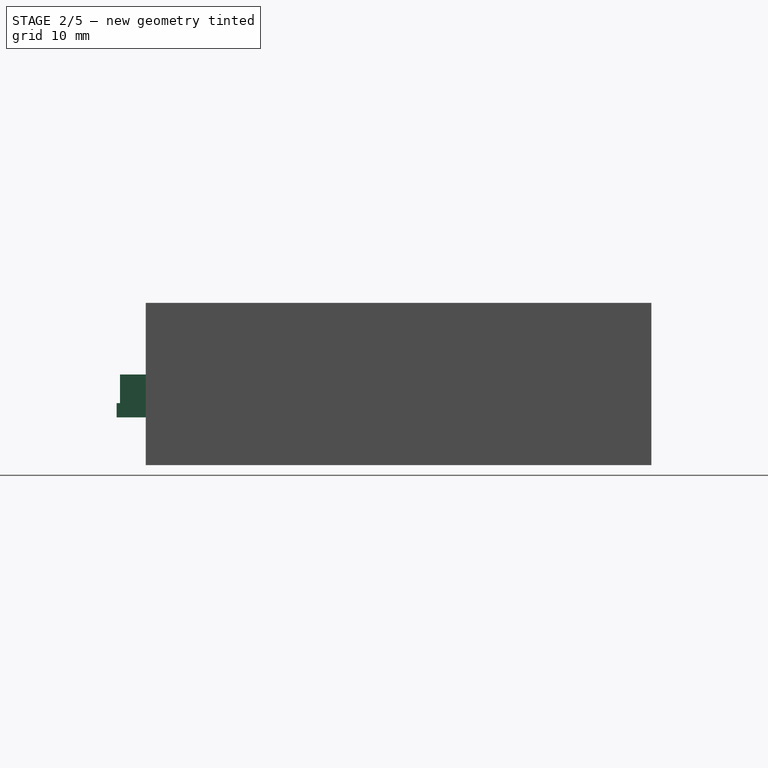
[diagram: stage 2 of 5 — right view after this stage's code; geometry added in this stage tinted green]
FEATURE [Sketcher::SketchObject] Sketch017
  ArcFitTolerance = 1e-06
  AttachmentSupport = -> [XY_Plane007]
  FullyConstrained = true
  MakeInternals = false
  MapMode = 5
  sketch-geometry (2):
    g0: Circle CenterX=15.2 CenterY=0 CenterZ=0 NormalX=0 NormalY=0 NormalZ=1 AngleXU=0 Radius=1.1
    g1: Circle CenterX=29.2 CenterY=0 CenterZ=0 NormalX=0 NormalY=0 NormalZ=1 AngleXU=0 Radius=1.1
  constraints (6):
    c: PointOnObject(g0,g-1)
    c: PointOnObject(g1,g-1)
    c: Equal(g1,g0)
    c: Diameter(g0) = 2.2
    c: DistanceX(g-1,g0) = 15.2
    c: DistanceX(g-1,g1) = 29.2
FEATURE [Sketcher::SketchObject] Sketch018
  ArcFitTolerance = 1e-06
  AttachmentSupport = -> [XY_Plane008]
  FullyConstrained = true
  MakeInternals = false
  MapMode = 5
  sketch-geometry (5):
    g0: LineSegment StartX=19.5 StartY=2.7 StartZ=0 EndX=19.5 EndY=-2.7 EndZ=0
    g1: LineSegment StartX=19.5 StartY=-2.7 StartZ=0 EndX=24.9 EndY=-2.7 EndZ=0
    g2: LineSegment StartX=24.9 StartY=-2.7 StartZ=0 EndX=24.9 EndY=2.7 EndZ=0
    g3: LineSegment StartX=24.9 StartY=2.7 StartZ=0 EndX=19.5 EndY=2.7 EndZ=0
    g4: GeomPoint X=22.2 Y=-2.7 Z=0
  constraints (12):
    c: Coincident(g0,g1)
    c: Coincident(g1,g2)
    c: Coincident(g2,g3)
    c: Coincident(g3,g0)
    c: Vertical(g2)
    c: Horizontal(g1)
    c: Horizontal(g3)
    c: Symmetric(g1,g1,g4)
    c: DistanceX(g-1,g4) = 22.2
    c: Symmetric(g0,g0,g-1)
    c: Equal(g3,g0)
    c: DistanceX(g3,g3) = 5.4
FEATURE [PartDesign::Pad] Pad012  label="main005"
  Direction = (0,0,1)
  Length = 3
  Length2 = 10
  Profile = -> Sketch018
  ReferenceAxis = -> Sketch018 [N_Axis]
  Suppressed = false
  Type = 0
FEATURE [PartDesign::Body] Body005  label="scroll"
  AllowCompound = false
  Group = -> [Sketch014,Pad009,Sketch015,Pad010,Sketch016,Pocket005,Sketch019,Pocket006,Sketch017,Pad011]
  Origin = -> Origin007
  Placement = pos=(0,32.5,8.5) rot=(0,0,1;0rad)
  Tip = -> Pad011
FEATURE [Sketcher::SketchObject] Sketch020
  ArcFitTolerance = 1e-06
  AttachmentSupport = -> [XY_Plane008]
  FullyConstrained = true
  MakeInternals = false
  MapMode = 5
  expr: Constraints[8] = Sketch018.Constraints[8]
  sketch-geometry (5):
    g0: LineSegment StartX=19.15 StartY=3.05 StartZ=0 EndX=19.15 EndY=-3.05 EndZ=0
    g1: LineSegment StartX=19.15 StartY=-3.05 StartZ=0 EndX=25.25 EndY=-3.05 EndZ=0
    g2: LineSegment StartX=25.25 StartY=-3.05 StartZ=0 EndX=25.25 EndY=3.05 EndZ=0
    g3: LineSegment StartX=25.25 StartY=3.05 StartZ=0 EndX=19.15 EndY=3.05 EndZ=0
    g4: GeomPoint X=22.2 Y=-3.05 Z=0
  constraints (12):
    c: Coincident(g0,g1)
    c: Coincident(g1,g2)
    c: Coincident(g2,g3)
    c: Coincident(g3,g0)
    c: Vertical(g2)
    c: Horizontal(g1)
    c: Horizontal(g3)
    c: Symmetric(g1,g1,g4)
    c: DistanceX(g-1,g4) = 22.2
    c: Symmetric(g0,g0,g-1)
    c: Equal(g3,g0)
    c: DistanceX(g3,g3) = 6.1
FEATURE [PartDesign::Pad] Pad013  label="collar002"
  BaseFeature = -> Pad012
  Direction = (0,0,1)
  Length = 1.5
  Length2 = 10
  Profile = -> Sketch020
  ReferenceAxis = -> Sketch020 [N_Axis]
  Reversed = true
  Suppressed = false
  Type = 0
FEATURE [Sketcher::SketchObject] Sketch024
  ArcFitTolerance = 1e-06
  AttachmentOffset = pos=(0,0,8.5) rot=(0,0,1;0rad)
  AttachmentSupport = -> [XY_Plane002]
  FullyConstrained = true
  MakeInternals = false
  MapMode = 5
  Placement = pos=(0,0,8.5) rot=(0,0,1;0rad)
  sketch-geometry (24):
    g0: LineSegment [constr] StartX=0 StartY=0 StartZ=0 EndX=11.2 EndY=0 EndZ=0
    g1: LineSegment StartX=12.1 StartY=22.1 StartZ=0 EndX=12.1 EndY=15.9 EndZ=0
    g2: LineSegment StartX=12.1 StartY=15.9 StartZ=0 EndX=18.3 EndY=15.9 EndZ=0
    g3: LineSegment StartX=18.3 StartY=15.9 StartZ=0 EndX=18.3 EndY=22.1 EndZ=0
    g4: LineSegment StartX=18.3 StartY=22.1 StartZ=0 EndX=12.1 EndY=22.1 EndZ=0
    g5: LineSegment StartX=25.2 StartY=23 StartZ=0 EndX=25.2 EndY=15 EndZ=0
    g6: LineSegment StartX=25.2 StartY=15 StartZ=0 EndX=33.2 EndY=15 EndZ=0
    g7: LineSegment StartX=33.2 StartY=15 StartZ=0 EndX=33.2 EndY=23 EndZ=0
    g8: LineSegment StartX=33.2 StartY=23 StartZ=0 EndX=25.2 EndY=23 EndZ=0
    g9: LineSegment StartX=12.1 StartY=49.1 StartZ=0 EndX=12.1 EndY=42.9 EndZ=0
    g10: LineSegment StartX=12.1 StartY=42.9 StartZ=0 EndX=18.3 EndY=42.9 EndZ=0
    g11: LineSegment StartX=18.3 StartY=42.9 StartZ=0 EndX=18.3 EndY=49.1 EndZ=0
    g12: LineSegment StartX=18.3 StartY=49.1 StartZ=0 EndX=12.1 EndY=49.1 EndZ=0
    g13: LineSegment StartX=25.2 StartY=50 StartZ=0 EndX=25.2 EndY=42 EndZ=0
    g14: LineSegment StartX=25.2 StartY=42 StartZ=0 EndX=33.2 EndY=42 EndZ=0
    g15: LineSegment StartX=33.2 StartY=42 StartZ=0 EndX=33.2 EndY=50 EndZ=0
    g16: LineSegment StartX=33.2 StartY=50 StartZ=0 EndX=25.2 EndY=50 EndZ=0
    g17: GeomPoint X=12.1 Y=19 Z=0
    g18: GeomPoint X=15.2 Y=15.9 Z=0
    g19: GeomPoint X=29.2 Y=15 Z=0
    g20: GeomPoint X=12.1 Y=46 Z=0
    g21: GeomPoint X=25.2 Y=46 Z=0
    g22: GeomPoint X=29.2 Y=42 Z=0
    g23: GeomPoint X=25.2 Y=19 Z=0
  constraints (58):
    c: Coincident(g0,g-1)
    c: PointOnObject(g0,g-1)
    c: DistanceX(g0,g0) = 11.2
    c: Coincident(g1,g2)
    c: Coincident(g2,g3)
    c: Coincident(g3,g4)
    c: Coincident(g4,g1)
    c: Vertical(g1)
    c: Vertical(g3)
    c: Horizontal(g2)
    c: Horizontal(g4)
    c: Coincident(g5,g6)
    c: Coincident(g6,g7)
    c: Coincident(g7,g8)
    c: Coincident(g8,g5)
    c: Vertical(g5)
    c: Vertical(g7)
    c: Horizontal(g6)
    c: Horizontal(g8)
    c: Coincident(g9,g10)
    c: Coincident(g10,g11)
    c: Coincident(g11,g12)
    c: Coincident(g12,g9)
    c: Vertical(g9)
    c: Vertical(g11)
    c: Horizontal(g10)
    c: Horizontal(g12)
    c: Coincident(g13,g14)
    c: Coincident(g14,g15)
    c: Coincident(g15,g16)
    c: Coincident(g16,g13)
    c: Vertical(g13)
    c: Vertical(g15)
    c: Horizontal(g14)
    c: Horizontal(g16)
    c: Equal(g12,g9)
    c: Equal(g4,g1)
    c: Equal(g8,g5)
    c: Equal(g12,g4)
    c: DistanceY(g9,g9) = 6.2
    c: Vertical(g10,g3)
    c: Symmetric(g1,g1,g17)
    c: Symmetric(g2,g2,g18)
    c: Symmetric(g6,g6,g19)
    c: Symmetric(g9,g9,g20)
    c: DistanceY(g0,g17) = 19
    c: DistanceY(g0,g20) = 46
    c: DistanceX(g0,g18) = 4
    c: DistanceX(g0,g19) = 18
    c: Symmetric(g13,g13,g21)
    c: Horizontal(g21,g20)
    c: Equal(g16,g13)
    c: DistanceX(g16,g16) = 8
    c: Symmetric(g14,g14,g22)
    c: Vertical(g19,g22)
    c: Equal(g8,g16)
    c: Symmetric(g5,g5,g23)
    c: Horizontal(g23,g17)
FEATURE [PartDesign::Pocket] Pocket008  label="collar pockets"
  BaseFeature = -> Pocket007
  Direction = (0,0,-1)
  Length = 1
  Length2 = 5
  Placement = pos=(0,0,0) rot=(1,0,0;1.5708rad)
  Profile = -> Sketch024
  ReferenceAxis = -> Sketch024 [N_Axis]
  Reversed = true
  Suppressed = false
  Type = 0
FEATURE [Sketcher::SketchObject] Sketch025
  ArcFitTolerance = 1e-06
  AttachmentOffset = pos=(0,0,8.5) rot=(0,0,1;0rad)
  AttachmentSupport = -> [XY_Plane002]
  FullyConstrained = true
  MakeInternals = false
  MapMode = 5
  Placement = pos=(0,0,8.5) rot=(0,0,1;0rad)
  sketch-geometry (7):
    g0: LineSegment [constr] StartX=0 StartY=0 StartZ=0 EndX=11.2 EndY=0 EndZ=0
    g1: LineSegment StartX=13.45 StartY=38.5 StartZ=0 EndX=13.45 EndY=26.5 EndZ=0
    g2: LineSegment StartX=13.45 StartY=26.5 StartZ=0 EndX=30.95 EndY=26.5 EndZ=0
    g3: LineSegment StartX=30.95 StartY=26.5 StartZ=0 EndX=30.95 EndY=38.5 EndZ=0
    g4: LineSegment StartX=30.95 StartY=38.5 StartZ=0 EndX=13.45 EndY=38.5 EndZ=0
    g5: GeomPoint X=13.45 Y=32.5 Z=0
    g6: GeomPoint X=22.2 Y=26.5 Z=0
  constraints (17):
    c: Coincident(g0,g-1)
    c: PointOnObject(g0,g-1)
    c: DistanceX(g0,g0) = 11.2
    c: Coincident(g1,g2)
    c: Coincident(g2,g3)
    c: Coincident(g3,g4)
    c: Coincident(g4,g1)
    c: Vertical(g1)
    c: Vertical(g3)
    c: Horizontal(g2)
    c: Horizontal(g4)
    c: Symmetric(g1,g1,g5)
    c: DistanceY(g0,g5) = 32.5
    c: DistanceY(g3,g3) = 12
    c: Symmetric(g2,g2,g6)
    c: DistanceX(g0,g6) = 11
    c: DistanceX(g4,g4) = 17.5
FEATURE [PartDesign::Pocket] Pocket009  label="scroll pocket"
  BaseFeature = -> Pocket008
  Direction = (0,0,-1)
  Length = 5
  Length2 = 5
  Placement = pos=(0,0,0) rot=(1,0,0;1.5708rad)
  Profile = -> Sketch025
  ReferenceAxis = -> Sketch025 [N_Axis]
  Reversed = true
  Suppressed = false
  Type = 1
FEATURE [Sketcher::SketchObject] Sketch026
  ArcFitTolerance = 1e-06
  AttachmentOffset = pos=(0,8.5,-32.5) rot=(0,0,1;0rad)
  AttachmentSupport = -> [XZ_Plane002]
  FullyConstrained = true
  MakeInternals = false
  MapMode = 5
  Placement = pos=(0,32.5,8.5) rot=(1,0,0;1.5708rad)
  sketch-geometry (1):
    g0: Circle CenterX=22.2 CenterY=0 CenterZ=0 NormalX=0 NormalY=0 NormalZ=1 AngleXU=0 Radius=1.7
  constraints (3):
    c: PointOnObject(g0,g-1)
    c: Radius(g0) = 1.7
    c: DistanceX(g-1,g0) = 22.2
FEATURE [PartDesign::Pocket] Pocket010  label="scroll axis pocket"
  BaseFeature = -> Pocket009
  Direction = (0,1,-2e-16)
  Length = 16
  Length2 = 5
  Midplane = true
  Placement = pos=(0,0,0) rot=(1,0,0;1.5708rad)
  Profile = -> Sketch026
  ReferenceAxis = -> Sketch026 [N_Axis]
  Suppressed = false
  Type = 0
FEATURE [PartDesign::Body] Body  label="main"
  AllowCompound = false
  Group = -> [Sketch,Pad,Sketch001,Pocket,Sketch022,Pad015,Sketch023,Pocket007,Sketch024,Pocket008,Sketch025,Pocket009,Sketch026,Pocket010]
  Origin = -> Origin002
  Tip = -> Pocket010
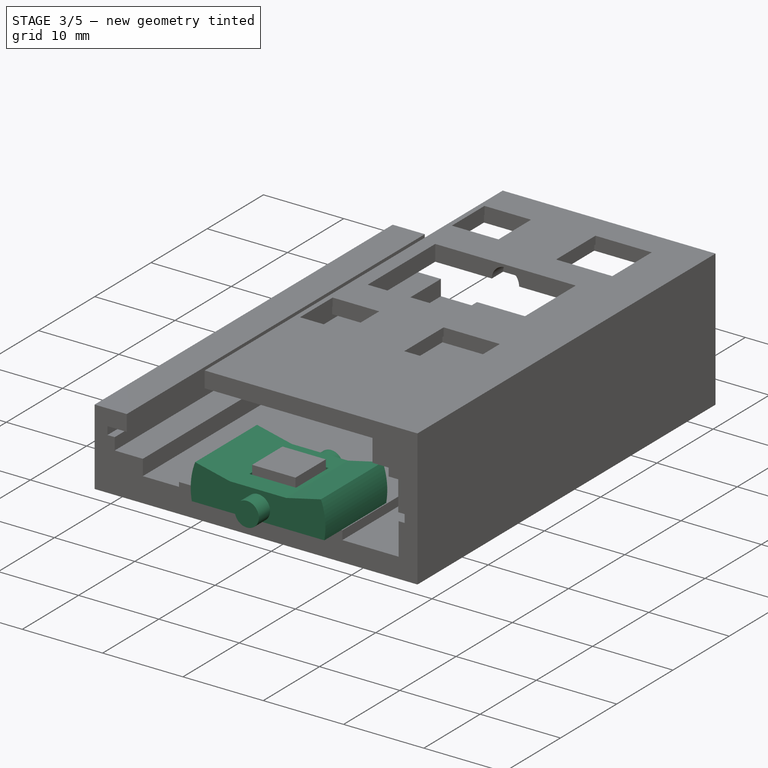
[diagram: stage 3 of 5 — iso view after this stage's code; geometry added in this stage tinted green]
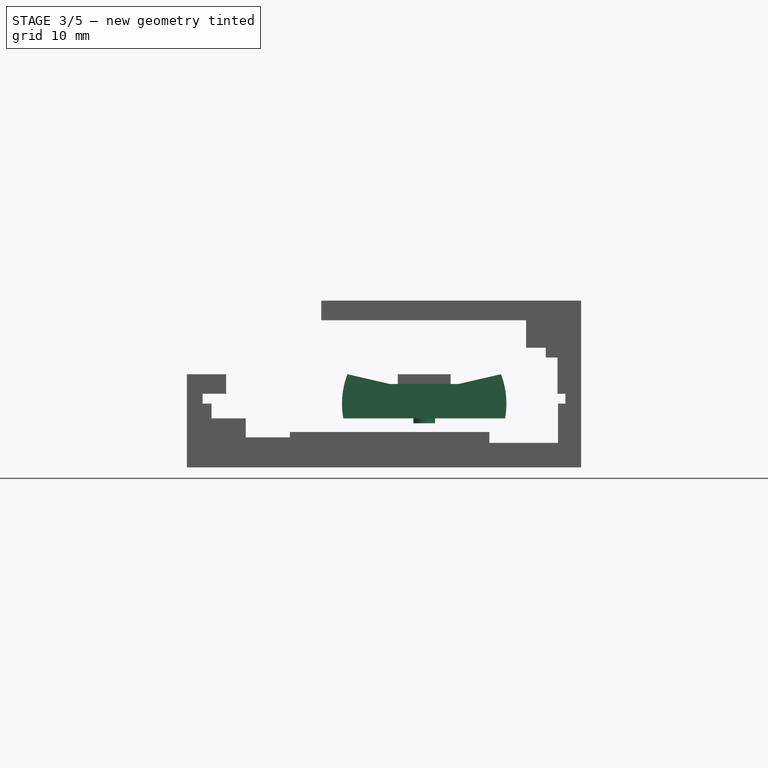
[diagram: stage 3 of 5 — front view after this stage's code; geometry added in this stage tinted green]
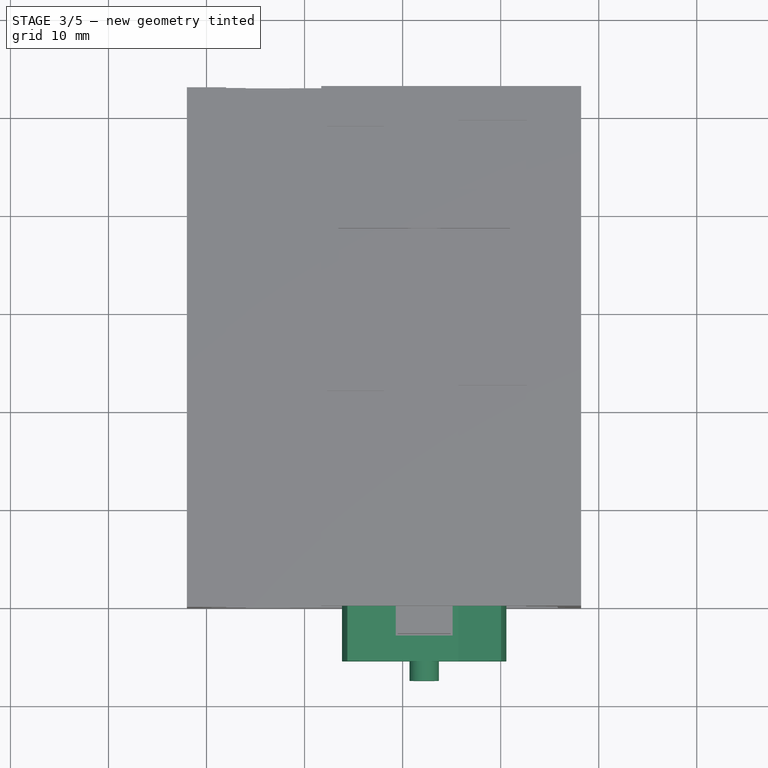
[diagram: stage 3 of 5 — top view after this stage's code; geometry added in this stage tinted green]
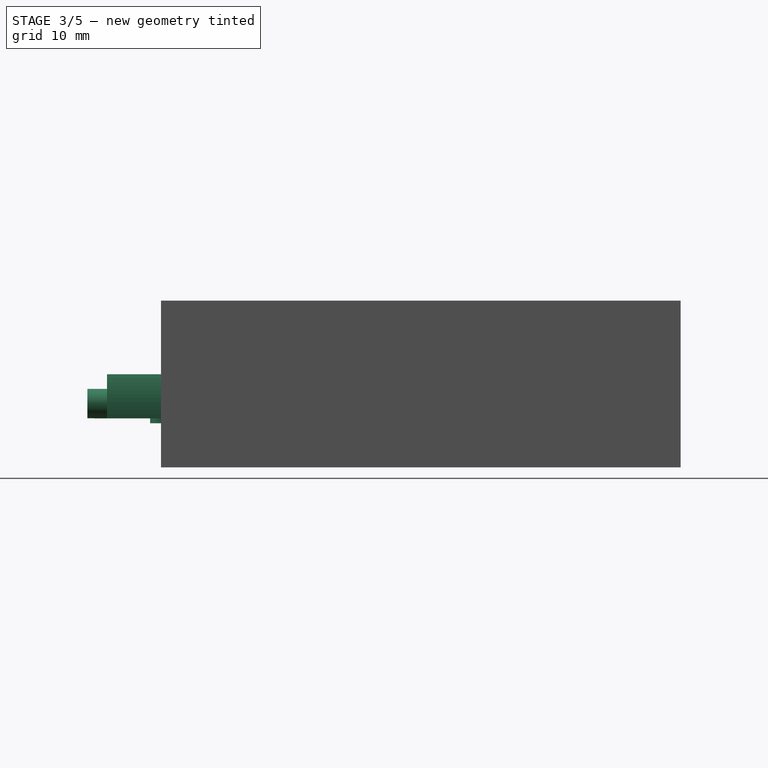
[diagram: stage 3 of 5 — right view after this stage's code; geometry added in this stage tinted green]
FEATURE [PartDesign::Body] Body004  label="button large"
  AllowCompound = false
  Group = -> [Sketch009,Pad006,Sketch010,Pad007,Sketch011,Pad008]
  Origin = -> Origin006
  Placement = pos=(0,0,8.5) rot=(0,0,1;0rad)
  Tip = -> Pad008
FEATURE [Sketcher::SketchObject] Sketch014
  ArcFitTolerance = 1e-06
  AttachmentSupport = -> [XZ_Plane007]
  FullyConstrained = true
  MakeInternals = false
  MapMode = 5
  Placement = pos=(0,0,0) rot=(1,0,0;1.5708rad)
  sketch-geometry (8):
    g0: LineSegment [constr] StartX=0 StartY=0 StartZ=0 EndX=22.2 EndY=0 EndZ=0
    g1: ArcOfCircle CenterX=22.2 CenterY=0 CenterZ=0 NormalX=0 NormalY=0 NormalZ=1 AngleXU=0 Radius=8.38525 StartAngle=2.77571 EndAngle=3.32145
    g2: ArcOfCircle CenterX=22.2 CenterY=0 CenterZ=0 NormalX=0 NormalY=0 NormalZ=1 AngleXU=0 Radius=8.38525 StartAngle=6.10333 EndAngle=6.64906
    g3: LineSegment StartX=14.3698 StartY=3 StartZ=0 EndX=18.7 EndY=2 EndZ=0
    g4: LineSegment StartX=30.0302 StartY=3 StartZ=0 EndX=25.7 EndY=2 EndZ=0
    g5: LineSegment StartX=18.7 StartY=2 StartZ=0 EndX=25.7 EndY=2 EndZ=0
    g6: GeomPoint X=22.2 Y=2 Z=0
    g7: LineSegment StartX=13.95 StartY=-1.5 StartZ=0 EndX=30.45 EndY=-1.5 EndZ=0
  constraints (22):
    c: Coincident(g0,g-1)
    c: Horizontal(g0)
    c: DistanceX(g0,g0) = 22.2
    c: DistanceX(g1,g2) = 16.5
    c: Coincident(g1,g0)
    c: Coincident(g2,g0)
    c: Horizontal(g1,g2)
    c: DistanceY(g0,g1) = 3
    c: Coincident(g3,g1)
    c: Coincident(g4,g2)
    c: Horizontal(g3,g4)
    c: DistanceY(g0,g3) = 2
    c: Equal(g3,g4)
    c: Coincident(g5,g3)
    c: Coincident(g5,g4)
    c: DistanceX(g5,g5) = 7
    c: Symmetric(g5,g5,g6)
    c: Vertical(g6,g0)
    c: Horizontal(g1,g2)
    c: Coincident(g7,g1)
    c: Coincident(g7,g2)
    c: DistanceY(g7,g0) = 1.5
FEATURE [PartDesign::Pad] Pad009  label="main004"
  Direction = (0,-1,2e-16)
  Length = 11
  Length2 = 10
  Midplane = true
  Placement = pos=(0,0,0) rot=(1,0,0;1.5708rad)
  Profile = -> Sketch014
  ReferenceAxis = -> Sketch014 [N_Axis]
  Suppressed = false
  Type = 0
FEATURE [Sketcher::SketchObject] Sketch015
  ArcFitTolerance = 1e-06
  AttachmentSupport = -> [XZ_Plane007]
  FullyConstrained = true
  MakeInternals = false
  MapMode = 5
  Placement = pos=(0,0,0) rot=(1,0,0;1.5708rad)
  sketch-geometry (1):
    g0: Circle CenterX=22.2 CenterY=0 CenterZ=0 NormalX=0 NormalY=0 NormalZ=1 AngleXU=0 Radius=1.5
  constraints (3):
    c: PointOnObject(g0,g-1)
    c: Radius(g0) = 1.5
    c: DistanceX(g-1,g0) = 22.2
FEATURE [PartDesign::Pad] Pad010  label="axis"
  BaseFeature = -> Pad009
  Direction = (0,-1,2e-16)
  Length = 15
  Length2 = 10
  Midplane = true
  Placement = pos=(0,0,0) rot=(1,0,0;1.5708rad)
  Profile = -> Sketch015
  ReferenceAxis = -> Sketch015 [N_Axis]
  Suppressed = false
  Type = 0
FEATURE [Sketcher::SketchObject] Sketch016
  ArcFitTolerance = 1e-06
  AttachmentSupport = -> [XY_Plane007]
  FullyConstrained = true
  MakeInternals = false
  MapMode = 5
  sketch-geometry (5):
    g0: LineSegment StartX=19.3 StartY=2.9 StartZ=0 EndX=19.3 EndY=-2.9 EndZ=0
    g1: LineSegment StartX=19.3 StartY=-2.9 StartZ=0 EndX=25.1 EndY=-2.9 EndZ=0
    g2: LineSegment StartX=25.1 StartY=-2.9 StartZ=0 EndX=25.1 EndY=2.9 EndZ=0
    g3: LineSegment StartX=25.1 StartY=2.9 StartZ=0 EndX=19.3 EndY=2.9 EndZ=0
    g4: GeomPoint X=22.2 Y=-2.9 Z=0
  constraints (12):
    c: Coincident(g0,g1)
    c: Coincident(g1,g2)
    c: Coincident(g2,g3)
    c: Coincident(g3,g0)
    c: Vertical(g2)
    c: Horizontal(g1)
    c: Horizontal(g3)
    c: Equal(g3,g0)
    c: DistanceY(g0,g0) = 5.8
    c: Symmetric(g0,g0,g-1)
    c: Symmetric(g1,g1,g4)
    c: DistanceX(g-1,g4) = 22.2
FEATURE [PartDesign::Pocket] Pocket005  label="button pocket"
  BaseFeature = -> Pad010
  Direction = (0,0,-1)
  Length = 5
  Length2 = 5
  Midplane = true
  Placement = pos=(0,0,0) rot=(1,0,0;1.5708rad)
  Profile = -> Sketch016
  ReferenceAxis = -> Sketch016 [N_Axis]
  Suppressed = false
  Type = 1
FEATURE [Sketcher::SketchObject] Sketch021
  ArcFitTolerance = 1e-06
  AttachmentSupport = -> [XY_Plane008]
  FullyConstrained = true
  MakeInternals = false
  MapMode = 5
  sketch-geometry (1):
    g0: Circle CenterX=22.2 CenterY=0 CenterZ=0 NormalX=0 NormalY=0 NormalZ=1 AngleXU=0 Radius=1.1
  constraints (3):
    c: PointOnObject(g0,g-1)
    c: DistanceX(g-1,g0) = 22.2
    c: Diameter(g0) = 2.2
FEATURE [PartDesign::Pad] Pad014
  BaseFeature = -> Pad013
  Direction = (0,0,1)
  Length = 2
  Length2 = 10
  Profile = -> Sketch021
  ReferenceAxis = -> Sketch021 [N_Axis]
  Reversed = true
  Suppressed = false
  Type = 0
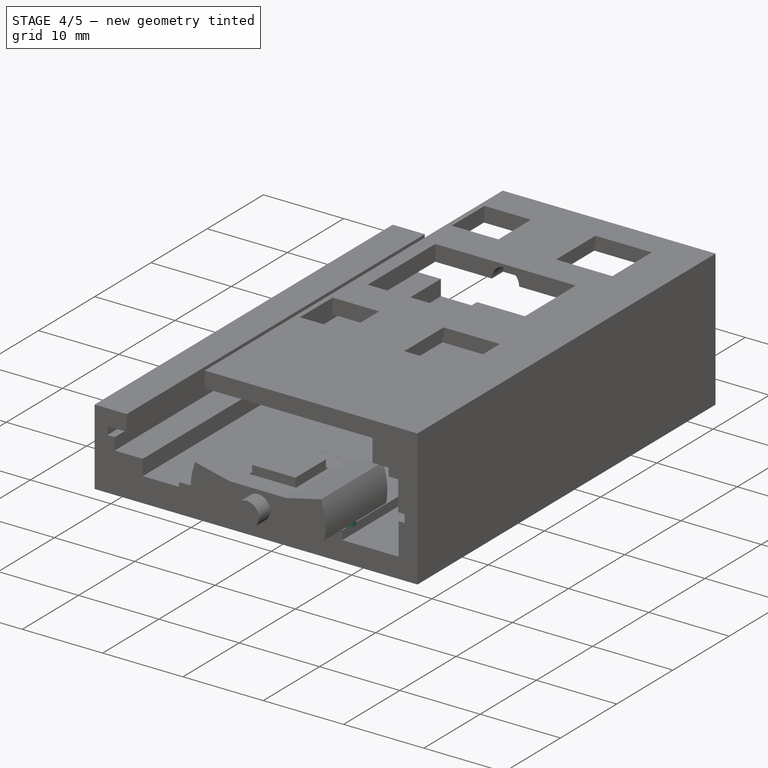
[diagram: stage 4 of 5 — iso view after this stage's code; geometry added in this stage tinted green]
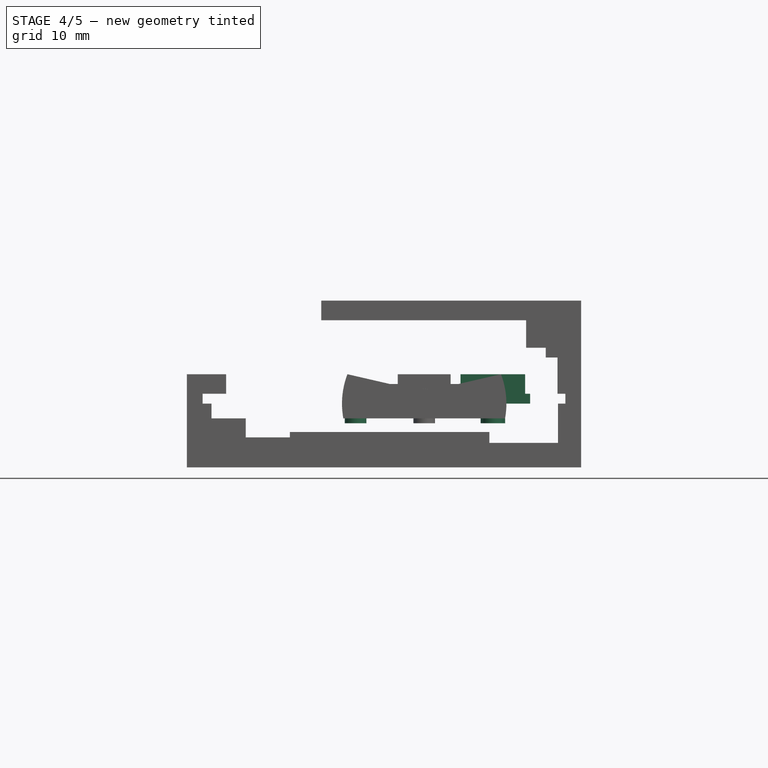
[diagram: stage 4 of 5 — front view after this stage's code; geometry added in this stage tinted green]
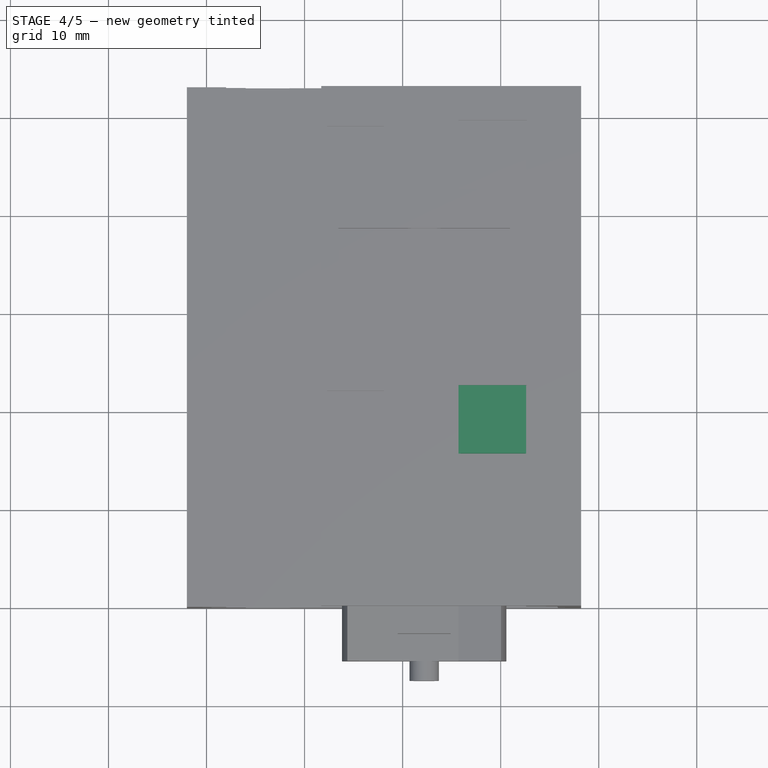
[diagram: stage 4 of 5 — top view after this stage's code; geometry added in this stage tinted green]
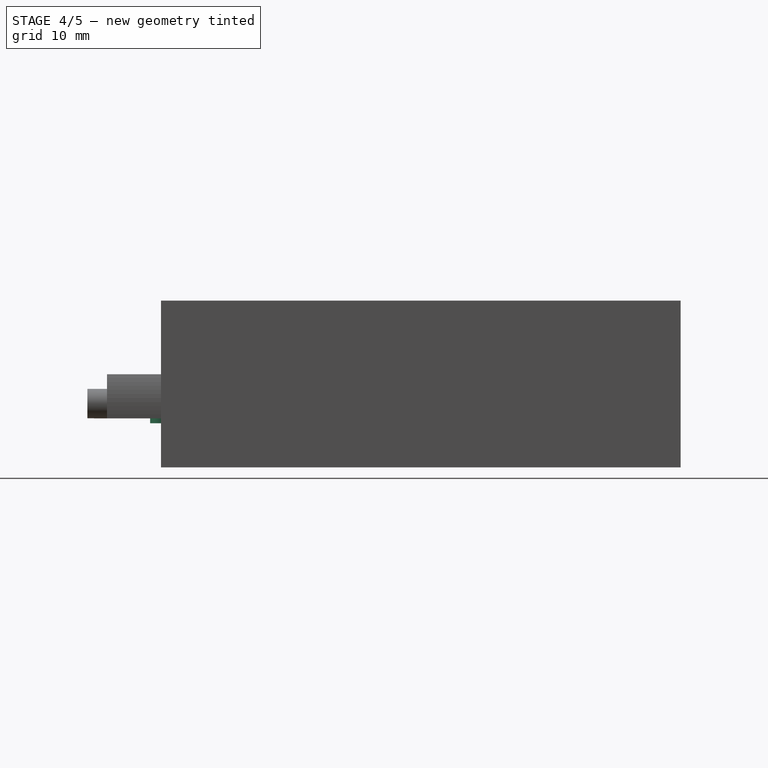
[diagram: stage 4 of 5 — right view after this stage's code; geometry added in this stage tinted green]
FEATURE [PartDesign::Body] Body003  label="button small"
  AllowCompound = false
  Group = -> [Sketch006,Pad003,Sketch007,Pad004,Sketch008,Pad005]
  Origin = -> Origin005
  Placement = pos=(0,0,8.5) rot=(0,0,1;0rad)
  Tip = -> Pad005
FEATURE [Sketcher::SketchObject] Sketch009
  ArcFitTolerance = 1e-06
  AttachmentSupport = -> [XY_Plane006]
  FullyConstrained = true
  MakeInternals = false
  MapMode = 5
  sketch-geometry (7):
    g0: LineSegment [constr] StartX=0 StartY=0 StartZ=0 EndX=11.2 EndY=0 EndZ=0
    g1: LineSegment StartX=25.9 StartY=22.3 StartZ=0 EndX=25.9 EndY=15.7 EndZ=0
    g2: LineSegment StartX=25.9 StartY=15.7 StartZ=0 EndX=32.5 EndY=15.7 EndZ=0
    g3: LineSegment StartX=32.5 StartY=15.7 StartZ=0 EndX=32.5 EndY=22.3 EndZ=0
    g4: LineSegment StartX=32.5 StartY=22.3 StartZ=0 EndX=25.9 EndY=22.3 EndZ=0
    g5: GeomPoint X=29.2 Y=15.7 Z=0
    g6: GeomPoint X=25.9 Y=19 Z=0
  constraints (17):
    c: Coincident(g0,g-1)
    c: PointOnObject(g0,g-1)
    c: DistanceX(g0,g0) = 11.2
    c: Coincident(g1,g2)
    c: Coincident(g2,g3)
    c: Coincident(g3,g4)
    c: Coincident(g4,g1)
    c: Vertical(g1)
    c: Vertical(g3)
    c: Horizontal(g2)
    c: Horizontal(g4)
    c: Equal(g4,g1)
    c: Symmetric(g2,g2,g5)
    c: DistanceX(g0,g5) = 18
    c: Symmetric(g1,g1,g6)
    c: DistanceY(g0,g6) = 19
    c: DistanceX(g4,g4) = 6.6
FEATURE [PartDesign::Pad] Pad006  label="main003"
  Direction = (0,0,1)
  Length = 3
  Length2 = 10
  Profile = -> Sketch009
  ReferenceAxis = -> Sketch009 [N_Axis]
  Suppressed = false
  Type = 0
FEATURE [Sketcher::SketchObject] Sketch010
  ArcFitTolerance = 1e-06
  AttachmentSupport = -> [XY_Plane006]
  FullyConstrained = true
  MakeInternals = false
  MapMode = 5
  expr: Constraints[13] = Sketch009.Constraints[13]
  expr: Constraints[15] = Sketch009.Constraints[15]
  expr: Constraints[2] = Sketch009.Constraints[2]
  sketch-geometry (7):
    g0: LineSegment [constr] StartX=0 StartY=0 StartZ=0 EndX=11.2 EndY=0 EndZ=0
    g1: LineSegment StartX=25.4 StartY=22.8 StartZ=0 EndX=25.4 EndY=15.2 EndZ=0
    g2: LineSegment StartX=25.4 StartY=15.2 StartZ=0 EndX=33 EndY=15.2 EndZ=0
    g3: LineSegment StartX=33 StartY=15.2 StartZ=0 EndX=33 EndY=22.8 EndZ=0
    g4: LineSegment StartX=33 StartY=22.8 StartZ=0 EndX=25.4 EndY=22.8 EndZ=0
    g5: GeomPoint X=29.2 Y=15.2 Z=0
    g6: GeomPoint X=25.4 Y=19 Z=0
  constraints (17):
    c: Coincident(g0,g-1)
    c: PointOnObject(g0,g-1)
    c: DistanceX(g0,g0) = 11.2
    c: Coincident(g1,g2)
    c: Coincident(g2,g3)
    c: Coincident(g3,g4)
    c: Coincident(g4,g1)
    c: Vertical(g1)
    c: Vertical(g3)
    c: Horizontal(g2)
    c: Horizontal(g4)
    c: Equal(g4,g1)
    c: Symmetric(g2,g2,g5)
    c: DistanceX(g0,g5) = 18
    c: Symmetric(g1,g1,g6)
    c: DistanceY(g0,g6) = 19
    c: DistanceX(g4,g4) = 7.6
FEATURE [PartDesign::Pad] Pad007  label="collar001"
  BaseFeature = -> Pad006
  Direction = (0,0,1)
  Length = 1
  Length2 = 10
  Profile = -> Sketch010
  ReferenceAxis = -> Sketch010 [N_Axis]
  Suppressed = false
  Type = 0
FEATURE [Sketcher::SketchObject] Sketch011
  ArcFitTolerance = 1e-06
  AttachmentSupport = -> [XY_Plane006]
  FullyConstrained = true
  MakeInternals = false
  MapMode = 5
  expr: Constraints[2] = Sketch008.Constraints[2]
  expr: Constraints[3] = Sketch008.Constraints[3]
  expr: Constraints[4] = Sketch009.Constraints[13]
  expr: Constraints[5] = Sketch008.Constraints[5]
  sketch-geometry (2):
    g0: LineSegment [constr] StartX=0 StartY=0 StartZ=0 EndX=11.2 EndY=0 EndZ=0
    g1: Circle CenterX=29.2 CenterY=19 CenterZ=0 NormalX=0 NormalY=0 NormalZ=1 AngleXU=0 Radius=1.25
  constraints (6):
    c: Coincident(g0,g-1)
    c: PointOnObject(g0,g-1)
    c: DistanceX(g0,g0) = 11.2
    c: DistanceY(g0,g1) = 19
    c: DistanceX(g0,g1) = 18
    c: Diameter(g1) = 2.5
FEATURE [PartDesign::Pad] Pad008  label="pin001"
  BaseFeature = -> Pad007
  Direction = (0,0,1)
  Length = 2
  Length2 = 10
  Profile = -> Sketch011
  ReferenceAxis = -> Sketch011 [N_Axis]
  Reversed = true
  Suppressed = false
  Type = 0
FEATURE [Sketcher::SketchObject] Sketch019
  ArcFitTolerance = 1e-06
  AttachmentSupport = -> [XY_Plane007]
  FullyConstrained = true
  MakeInternals = false
  MapMode = 5
  expr: Constraints[11] = Sketch016.Constraints[11]
  sketch-geometry (5):
    g0: LineSegment StartX=18.95 StartY=3.25 StartZ=0 EndX=18.95 EndY=-3.25 EndZ=0
    g1: LineSegment StartX=18.95 StartY=-3.25 StartZ=0 EndX=25.45 EndY=-3.25 EndZ=0
    g2: LineSegment StartX=25.45 StartY=-3.25 StartZ=0 EndX=25.45 EndY=3.25 EndZ=0
    g3: LineSegment StartX=25.45 StartY=3.25 StartZ=0 EndX=18.95 EndY=3.25 EndZ=0
    g4: GeomPoint X=22.2 Y=-3.25 Z=0
  constraints (12):
    c: Coincident(g0,g1)
    c: Coincident(g1,g2)
    c: Coincident(g2,g3)
    c: Coincident(g3,g0)
    c: Vertical(g2)
    c: Horizontal(g1)
    c: Horizontal(g3)
    c: Equal(g3,g0)
    c: DistanceY(g0,g0) = 6.5
    c: Symmetric(g0,g0,g-1)
    c: Symmetric(g1,g1,g4)
    c: DistanceX(g-1,g4) = 22.2
FEATURE [PartDesign::Pocket] Pocket006  label="button collar"
  BaseFeature = -> Pocket005
  Direction = (0,0,-1)
  Length = 5
  Length2 = 5
  Placement = pos=(0,0,0) rot=(1,0,0;1.5708rad)
  Profile = -> Sketch019
  ReferenceAxis = -> Sketch019 [N_Axis]
  Suppressed = false
  Type = 1
FEATURE [PartDesign::Pad] Pad011  label="pins"
  BaseFeature = -> Pocket006
  Direction = (0,0,1)
  Length = 2
  Length2 = 10
  Placement = pos=(0,0,0) rot=(1,0,0;1.5708rad)
  Profile = -> Sketch017
  ReferenceAxis = -> Sketch017 [N_Axis]
  Reversed = true
  Suppressed = false
  Type = 0
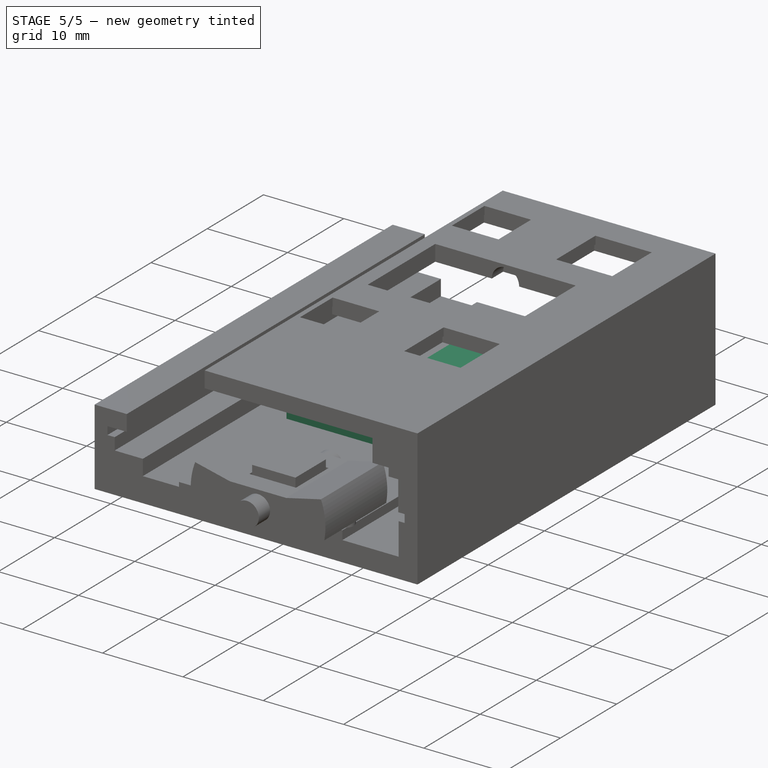
[diagram: stage 5 of 5 — iso view after this stage's code; geometry added in this stage tinted green]
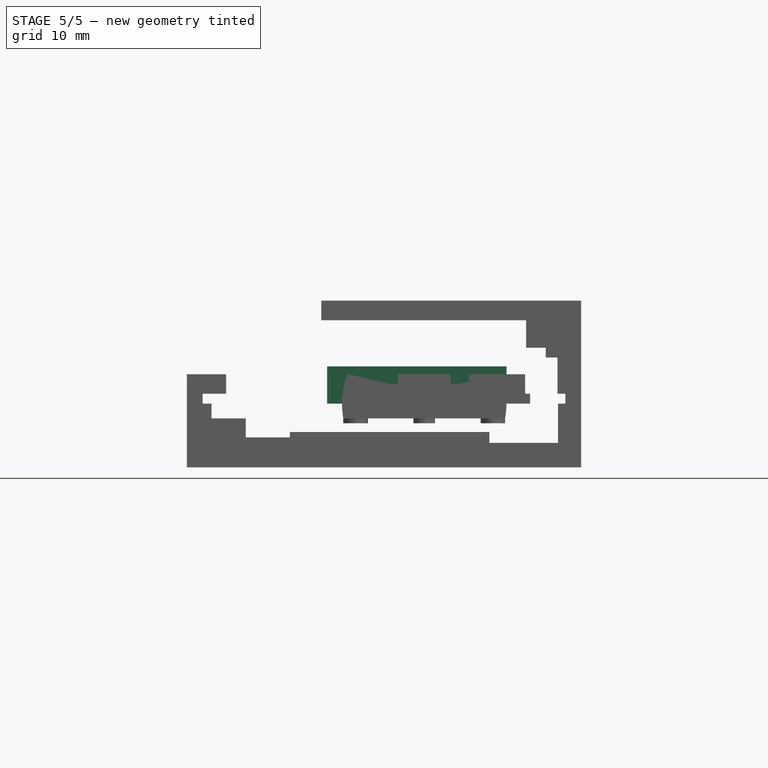
[diagram: stage 5 of 5 — front view after this stage's code; geometry added in this stage tinted green]
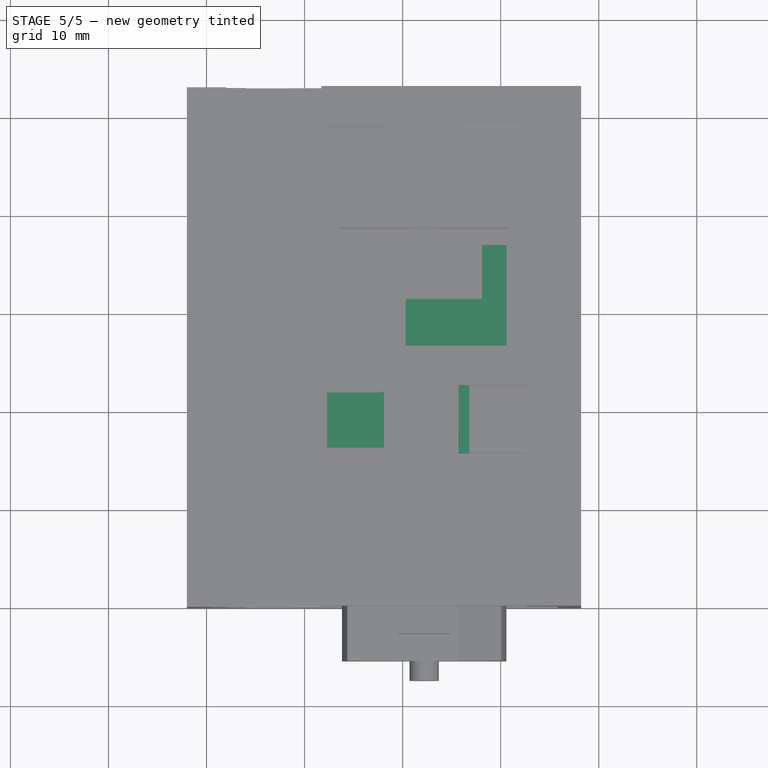
[diagram: stage 5 of 5 — top view after this stage's code; geometry added in this stage tinted green]
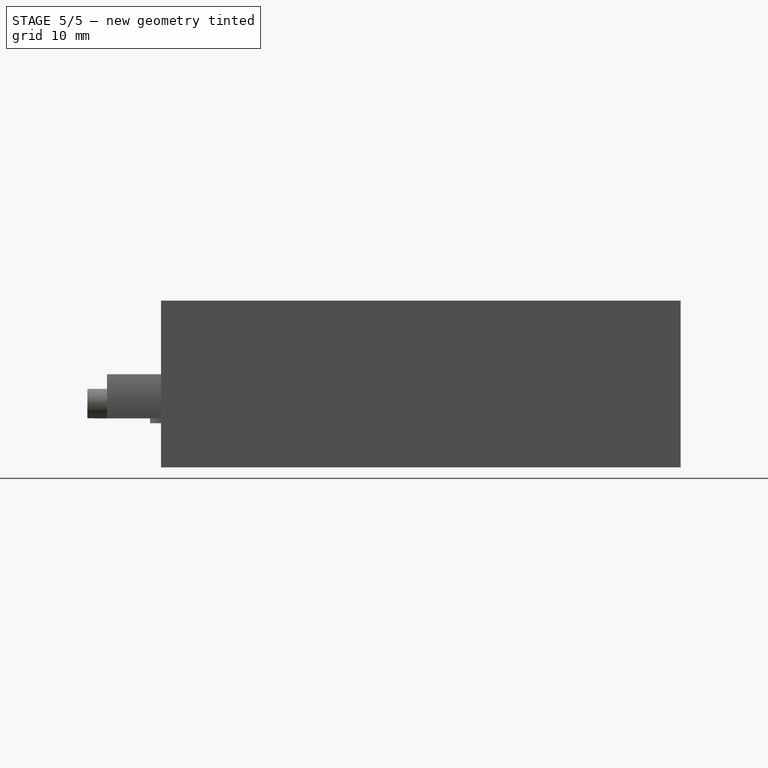
[diagram: stage 5 of 5 — right view after this stage's code; geometry added in this stage tinted green]
FEATURE [Sketcher::SketchObject] Sketch002
  ArcFitTolerance = 1e-06
  AttachmentSupport = -> [XY_Plane003]
  FullyConstrained = true
  MakeInternals = false
  MapMode = 5
  sketch-geometry (12):
    g0: LineSegment StartX=28.1 StartY=36.9 StartZ=0 EndX=28.1 EndY=31.4 EndZ=0
    g1: LineSegment StartX=28.1 StartY=31.4 StartZ=0 EndX=20.3 EndY=31.4 EndZ=0
    g2: LineSegment StartX=20.3 StartY=31.4 StartZ=0 EndX=20.3 EndY=21.9 EndZ=0
    g3: LineSegment StartX=20.3 StartY=21.9 StartZ=0 EndX=17.8 EndY=21.9 EndZ=0
    g4: LineSegment StartX=17.8 StartY=21.9 StartZ=0 EndX=17.8 EndY=18.7 EndZ=0
    g5: LineSegment StartX=17.8 StartY=18.7 StartZ=0 EndX=12.3 EndY=18.7 EndZ=0
    g6: LineSegment StartX=12.3 StartY=18.7 StartZ=0 EndX=12.3 EndY=13.7 EndZ=0
    g7: LineSegment StartX=12.3 StartY=13.7 StartZ=0 EndX=26.8 EndY=13.7 EndZ=0
    g8: LineSegment StartX=26.8 StartY=13.7 StartZ=0 EndX=26.8 EndY=23.9 EndZ=0
    g9: LineSegment StartX=26.8 StartY=23.9 StartZ=0 EndX=30.6 EndY=23.9 EndZ=0
    g10: LineSegment StartX=30.6 StartY=23.9 StartZ=0 EndX=30.6 EndY=36.9 EndZ=0
    g11: LineSegment StartX=28.1 StartY=36.9 StartZ=0 EndX=30.6 EndY=36.9 EndZ=0
  constraints (36):
    c: Vertical(g0)
    c: Coincident(g1,g0)
    c: Horizontal(g1)
    c: Coincident(g2,g1)
    c: Vertical(g2)
    c: Coincident(g3,g2)
    c: Horizontal(g3)
    c: Coincident(g4,g3)
    c: Coincident(g5,g4)
    c: Horizontal(g5)
    c: Coincident(g6,g5)
    c: Vertical(g6)
    c: Coincident(g7,g6)
    c: Horizontal(g7)
    c: Coincident(g8,g7)
    c: Vertical(g8)
    c: Coincident(g9,g8)
    c: Horizontal(g9)
    c: Coincident(g10,g9)
    c: Vertical(g10)
    c: Coincident(g11,g0)
    c: Coincident(g11,g10)
    c: Horizontal(g11)
    c: Vertical(g4)
    c: DistanceX(g7,g7) = 14.5
    c: DistanceY(g6,g6) = 5
    c: DistanceX(g5,g5) = 5.5
    c: DistanceX(g3,g3) = 2.5
    c: DistanceY(g4,g4) = 3.2
    c: DistanceY(g2,g2) = 9.5
    c: DistanceX(g1,g1) = 7.8
    c: DistanceY(g0,g0) = 5.5
    c: DistanceX(g11,g11) = 2.5
    c: DistanceY(g10,g10) = 13
    c: DistanceX(g-1,g6) = 12.3
    c: DistanceY(g-1,g6) = 13.7
FEATURE [PartDesign::Pad] Pad001
  Direction = (0,0,1)
  Length = 3.8
  Length2 = 10
  Profile = -> Sketch002
  ReferenceAxis = -> Sketch002 [N_Axis]
  Suppressed = false
  Type = 0
FEATURE [PartDesign::Body] Body001  label="distance"
  AllowCompound = false
  Group = -> [Sketch002,Pad001]
  Origin = -> Origin003
  Placement = pos=(0,0,1) rot=(0,0,1;0rad)
  Tip = -> Pad001
FEATURE [Sketcher::SketchObject] Sketch006
  ArcFitTolerance = 1e-06
  AttachmentSupport = -> [XY_Plane005]
  FullyConstrained = true
  MakeInternals = false
  MapMode = 5
  sketch-geometry (7):
    g0: LineSegment [constr] StartX=1e-16 StartY=0 StartZ=0 EndX=11.2 EndY=0 EndZ=0
    g1: LineSegment StartX=12.5 StartY=21.7 StartZ=0 EndX=12.5 EndY=16.3 EndZ=0
    g2: LineSegment StartX=12.5 StartY=16.3 StartZ=0 EndX=17.9 EndY=16.3 EndZ=0
    g3: LineSegment StartX=17.9 StartY=16.3 StartZ=0 EndX=17.9 EndY=21.7 EndZ=0
    g4: LineSegment StartX=17.9 StartY=21.7 StartZ=0 EndX=12.5 EndY=21.7 EndZ=0
    g5: GeomPoint X=12.5 Y=19 Z=0
    g6: GeomPoint X=15.2 Y=16.3 Z=0
  constraints (17):
    c: Coincident(g0,g-1)
    c: PointOnObject(g0,g-1)
    c: DistanceX(g0,g0) = 11.2
    c: Coincident(g1,g2)
    c: Coincident(g2,g3)
    c: Coincident(g3,g4)
    c: Coincident(g4,g1)
    c: Vertical(g1)
    c: Vertical(g3)
    c: Horizontal(g2)
    c: Horizontal(g4)
    c: Equal(g4,g1)
    c: Symmetric(g1,g1,g5)
    c: Symmetric(g2,g2,g6)
    c: DistanceY(g0,g5) = 19
    c: DistanceX(g0,g6) = 4
    c: DistanceY(g1,g1) = 5.4
FEATURE [PartDesign::Pad] Pad003  label="main002"
  Direction = (0,0,1)
  Length = 3
  Length2 = 10
  Profile = -> Sketch006
  ReferenceAxis = -> Sketch006 [N_Axis]
  Suppressed = false
  Type = 0
FEATURE [Sketcher::SketchObject] Sketch007
  ArcFitTolerance = 1e-06
  AttachmentSupport = -> [XY_Plane005]
  FullyConstrained = true
  MakeInternals = false
  MapMode = 5
  expr: Constraints[14] = Sketch006.Constraints[14]
  expr: Constraints[15] = Sketch006.Constraints[15]
  expr: Constraints[2] = Sketch006.Constraints[2]
  sketch-geometry (7):
    g0: LineSegment [constr] StartX=0 StartY=0 StartZ=0 EndX=11.2 EndY=0 EndZ=0
    g1: LineSegment StartX=12.3 StartY=21.9 StartZ=0 EndX=12.3 EndY=16.1 EndZ=0
    g2: LineSegment StartX=12.3 StartY=16.1 StartZ=0 EndX=18.1 EndY=16.1 EndZ=0
    g3: LineSegment StartX=18.1 StartY=16.1 StartZ=0 EndX=18.1 EndY=21.9 EndZ=0
    g4: LineSegment StartX=18.1 StartY=21.9 StartZ=0 EndX=12.3 EndY=21.9 EndZ=0
    g5: GeomPoint X=12.3 Y=19 Z=0
    g6: GeomPoint X=15.2 Y=16.1 Z=0
  constraints (17):
    c: Coincident(g0,g-1)
    c: PointOnObject(g0,g-1)
    c: DistanceX(g0,g0) = 11.2
    c: Coincident(g1,g2)
    c: Coincident(g2,g3)
    c: Coincident(g3,g4)
    c: Coincident(g4,g1)
    c: Vertical(g1)
    c: Vertical(g3)
    c: Horizontal(g2)
    c: Horizontal(g4)
    c: Equal(g4,g1)
    c: Symmetric(g1,g1,g5)
    c: Symmetric(g2,g2,g6)
    c: DistanceY(g0,g5) = 19
    c: DistanceX(g0,g6) = 4
    c: DistanceY(g1,g1) = 5.8
FEATURE [PartDesign::Pad] Pad004  label="collar"
  BaseFeature = -> Pad003
  Direction = (0,0,1)
  Length = 1
  Length2 = 10
  Profile = -> Sketch007
  ReferenceAxis = -> Sketch007 [N_Axis]
  Suppressed = false
  Type = 0
FEATURE [Sketcher::SketchObject] Sketch008
  ArcFitTolerance = 1e-06
  AttachmentSupport = -> [XY_Plane005]
  FullyConstrained = true
  MakeInternals = false
  MapMode = 5
  expr: Constraints[2] = Sketch006.Constraints[2]
  expr: Constraints[3] = Sketch006.Constraints[14]
  expr: Constraints[4] = Sketch006.Constraints[15]
  sketch-geometry (2):
    g0: LineSegment [constr] StartX=0 StartY=0 StartZ=0 EndX=11.2 EndY=0 EndZ=0
    g1: Circle CenterX=15.2 CenterY=19 CenterZ=0 NormalX=0 NormalY=0 NormalZ=1 AngleXU=0 Radius=1.25
  constraints (6):
    c: Coincident(g0,g-1)
    c: PointOnObject(g0,g-1)
    c: DistanceX(g0,g0) = 11.2
    c: DistanceY(g0,g1) = 19
    c: DistanceX(g0,g1) = 4
    c: Diameter(g1) = 2.5
FEATURE [PartDesign::Pad] Pad005  label="pin"
  BaseFeature = -> Pad004
  Direction = (0,0,1)
  Length = 2
  Length2 = 10
  Profile = -> Sketch008
  ReferenceAxis = -> Sketch008 [N_Axis]
  Reversed = true
  Suppressed = false
  Type = 0
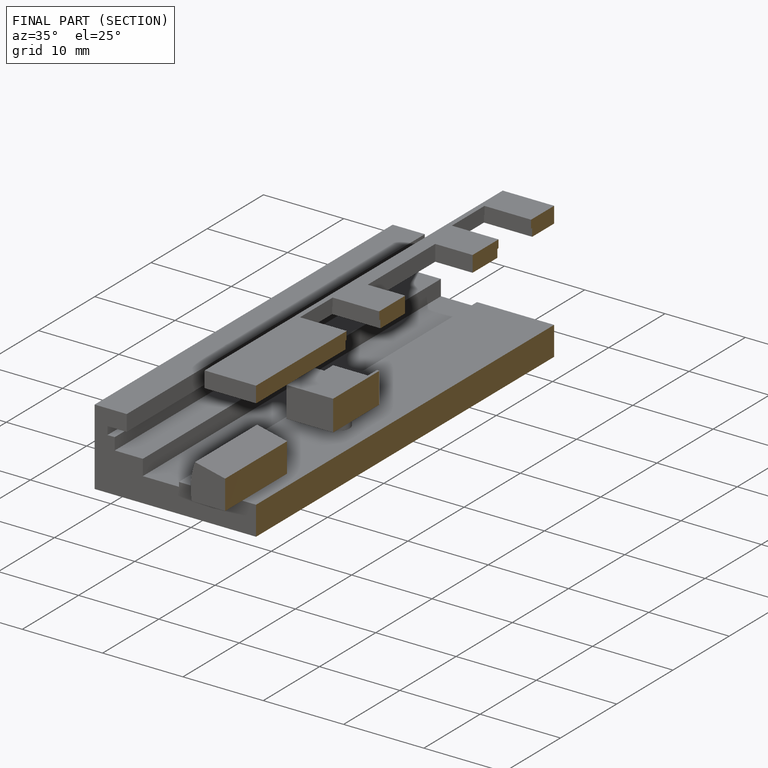
[diagram: finished part — half-section view (interior)]
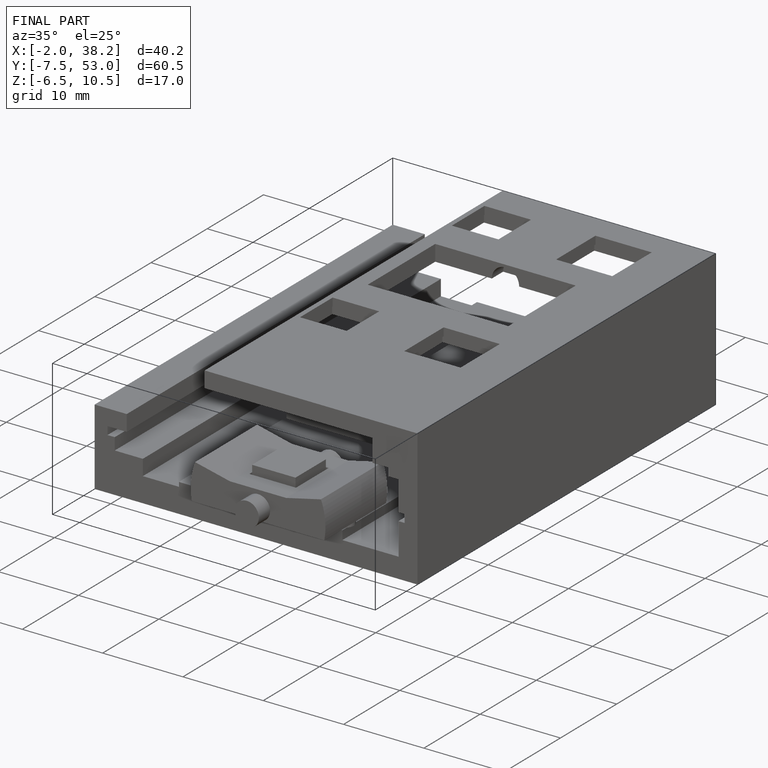
[diagram: finished part — iso view with bounding-box wireframe]
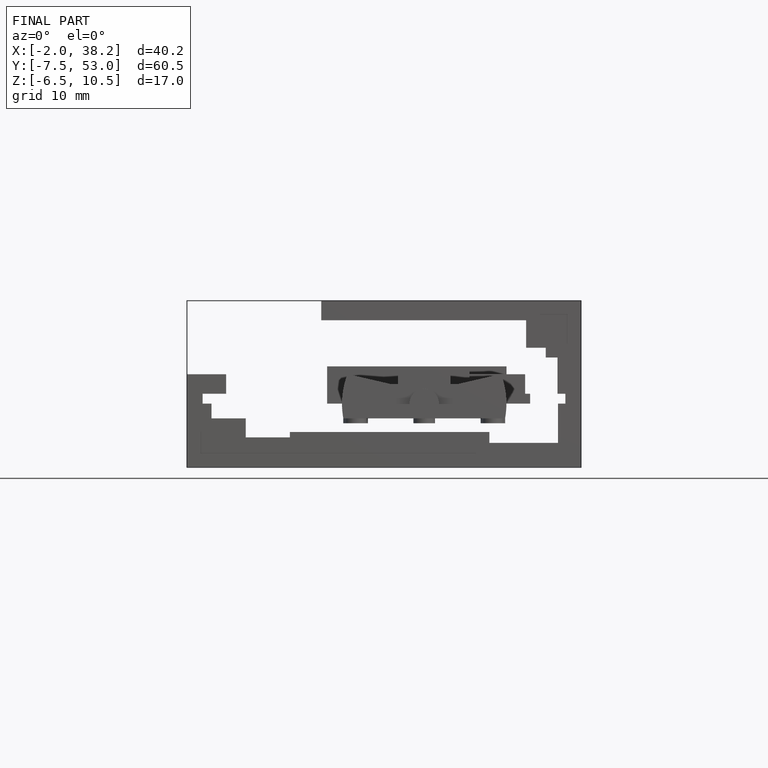
[diagram: finished part — front view with bounding-box wireframe]
